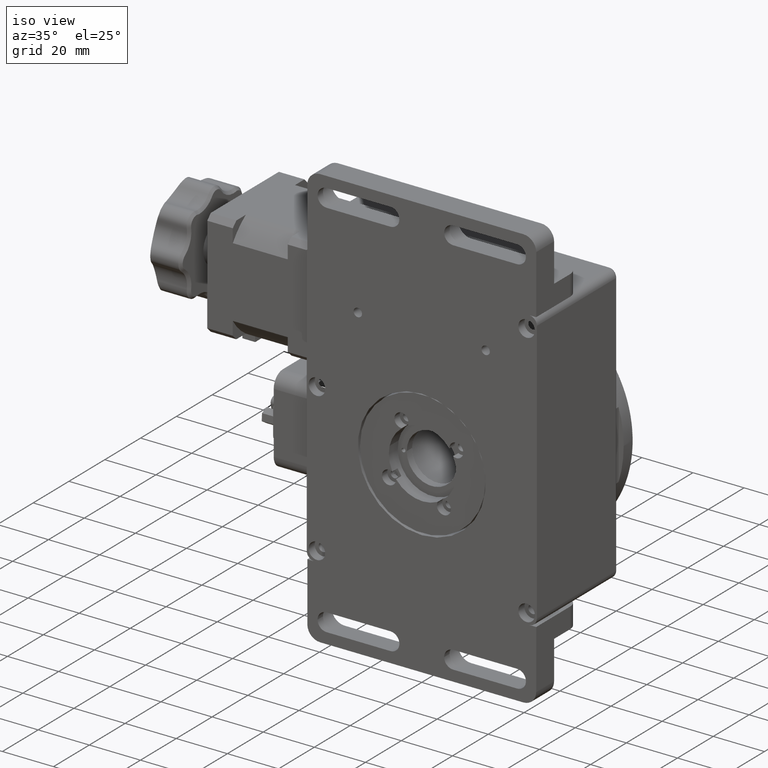
[diagram: clean part render]
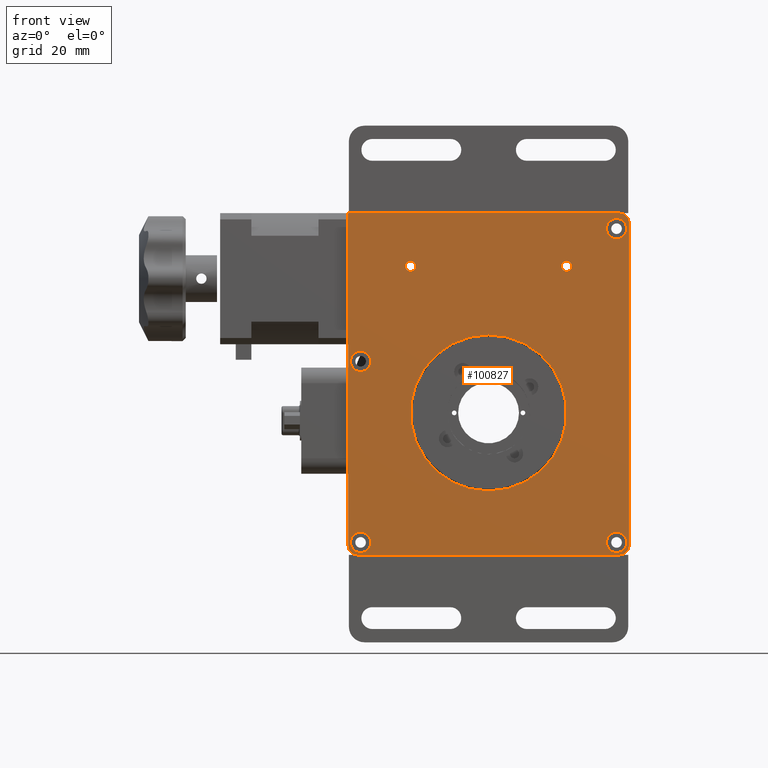
[diagram: tour spotlight — one face highlighted and labeled with its STEP entity id]
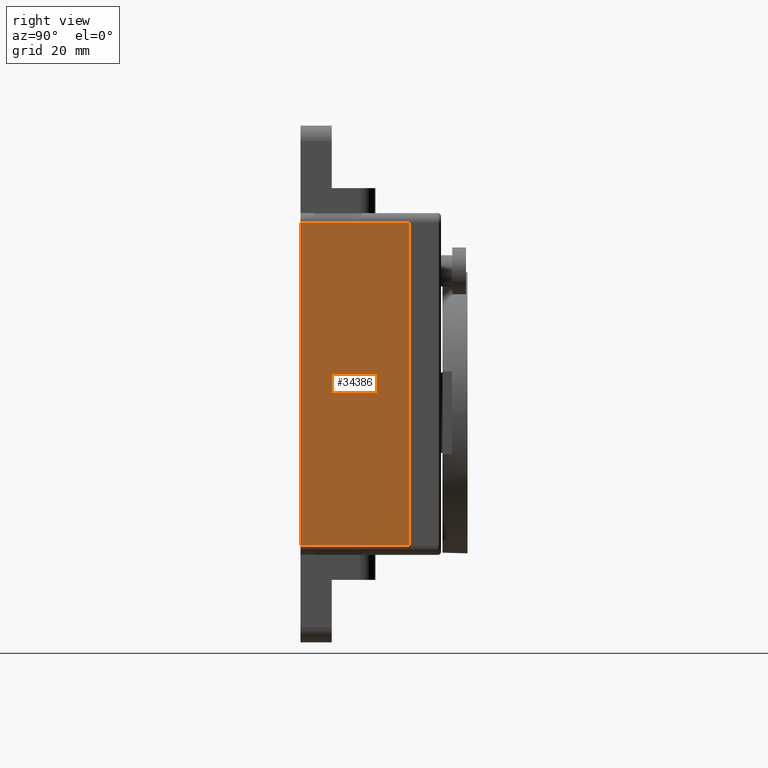
[diagram: tour spotlight — one face highlighted and labeled with its STEP entity id]
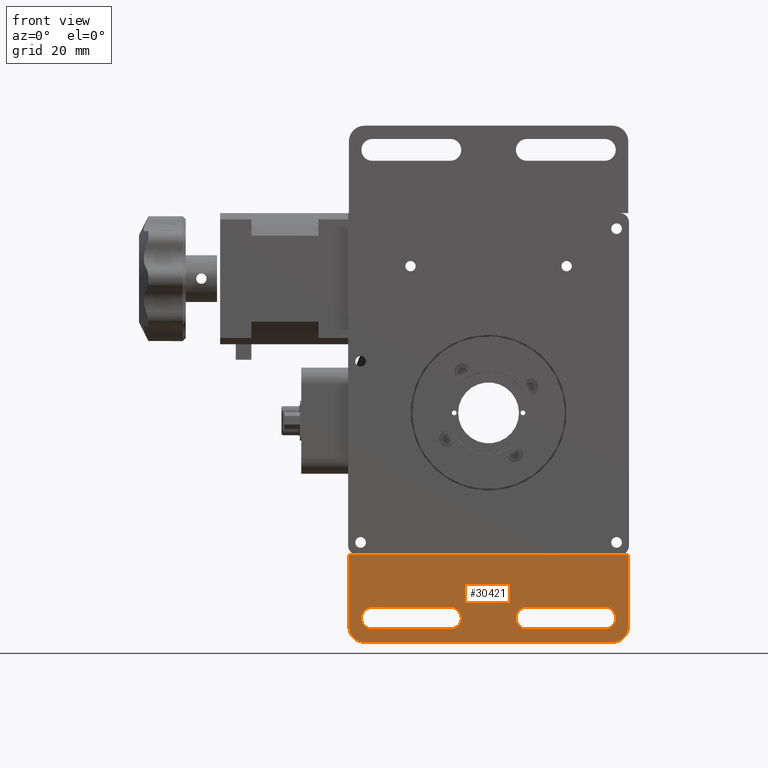
[diagram: tour spotlight — one face highlighted and labeled with its STEP entity id]
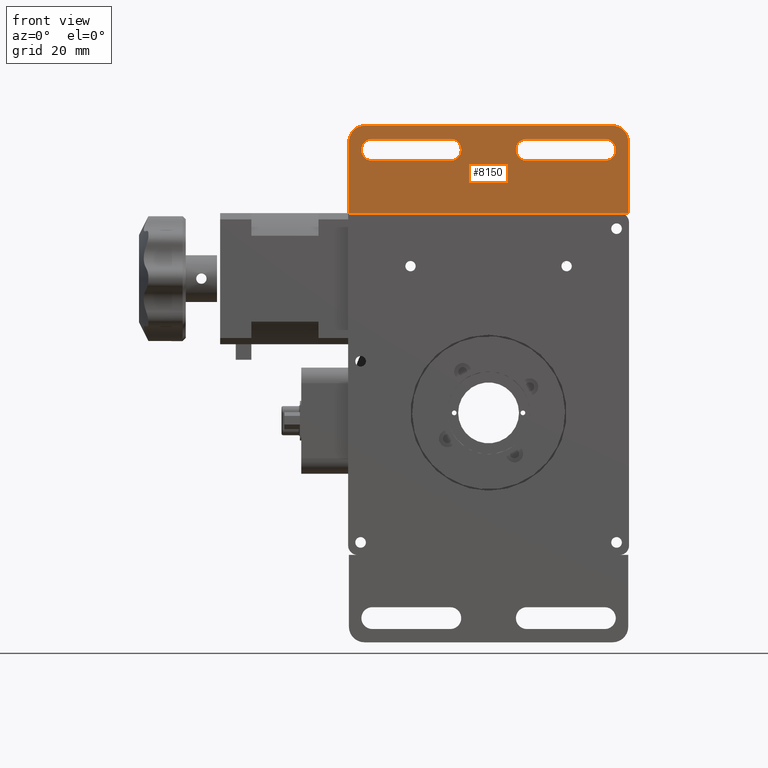
[diagram: tour spotlight — one face highlighted and labeled with its STEP entity id]
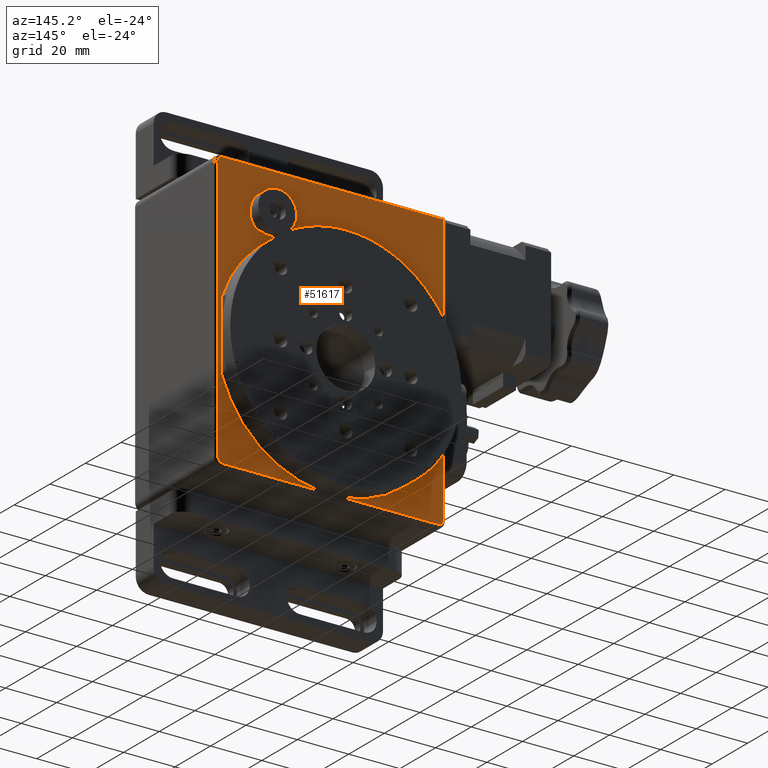
[diagram: tour spotlight — one face highlighted and labeled with its STEP entity id]
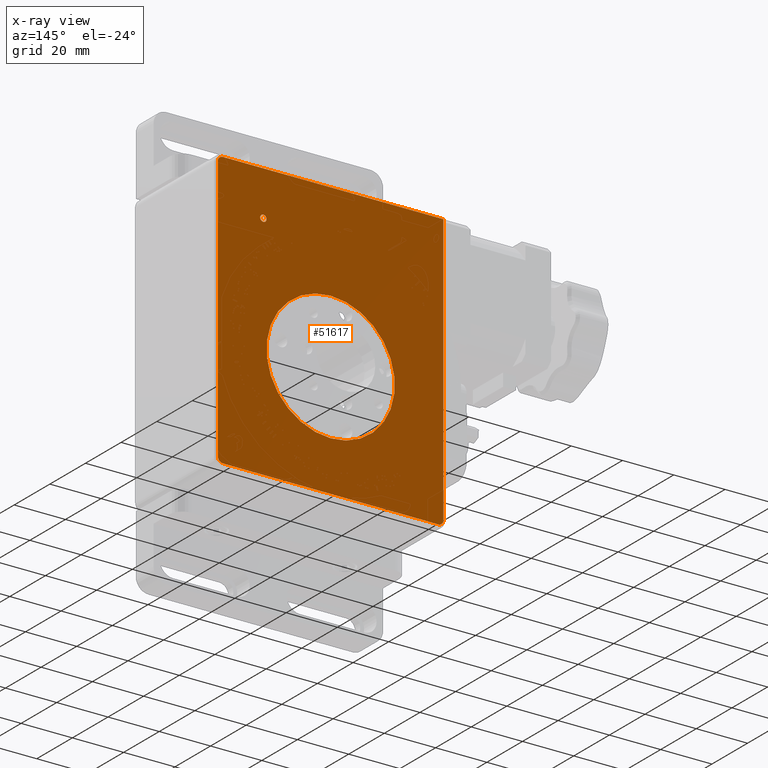
[diagram: x-ray of the same camera — body ghosted, this tour face saturated]
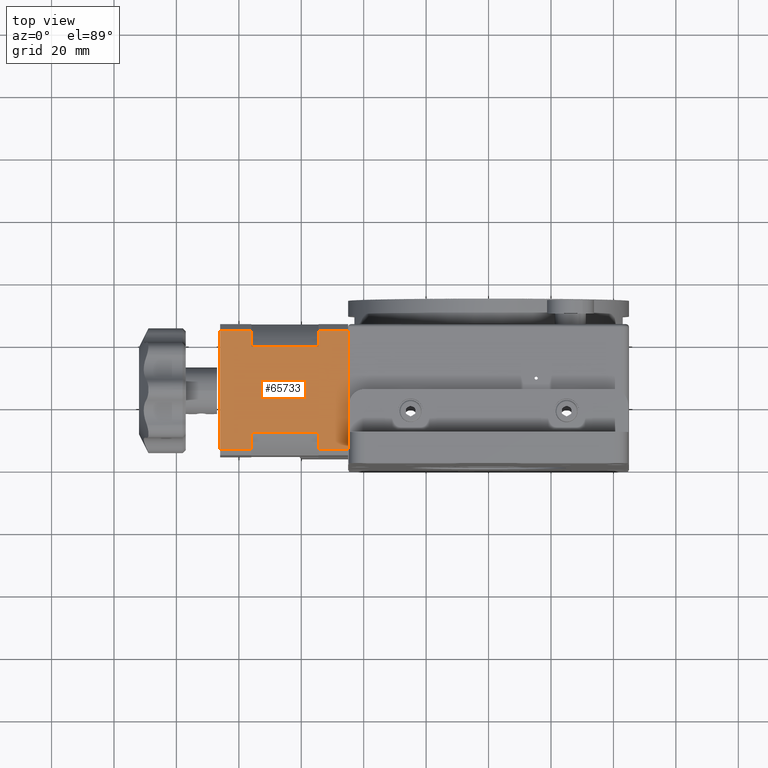
[diagram: tour spotlight — one face highlighted and labeled with its STEP entity id]
A machine part: a face-by-face anatomy tour. The part has 1119 B-rep faces; the first image is the clean iso view, then the 6 largest visible faces are spotlighted one at a time (largest first), each with its STEP entity span.

Face 1 — front view, entity #100827. In plain terms, the highlighted planar face has unit normal (0, -1, -0).
Definition (entity closure, byte-faithful):
#348 = VERTEX_POINT ( 'NONE', #94051 ) ;
#1037 = CARTESIAN_POINT ( 'NONE',  ( -42.00000000000000000, 2.433925457012779500E-015, -45.49999999999997900 ) ) ;
#1328 = CARTESIAN_POINT ( 'NONE',  ( 42.00000000000000000, -5.015193989266295700E-015, 60.99999999999999300 ) ) ;
#1618 = CARTESIAN_POINT ( 'NONE',  ( -44.99999999999999300, -1.616886962860230800E-014, 64.00000000000000000 ) ) ;
#2020 = VERTEX_POINT ( 'NONE', #40392 ) ;
#3432 = CARTESIAN_POINT ( 'NONE',  ( 41.00000000000000700, -4.804587717260983300E-015, 59.00000000000000000 ) ) ;
#3680 = CARTESIAN_POINT ( 'NONE',  ( -44.99999999999999300, -1.616886962860230800E-014, 64.00000000000000000 ) ) ;
#4402 = DIRECTION ( 'NONE',  ( 0.0000000000000000000, -1.665334536937751300E-016, 1.000000000000000000 ) ) ;
#4423 = CARTESIAN_POINT ( 'NONE',  ( 41.00000000000000700, -5.345821441765751800E-015, 62.24999999999999300 ) ) ;
#4454 = DIRECTION ( 'NONE',  ( 0.0000000000000000000, -1.665334536937752600E-016, 1.000000000000000000 ) ) ;
#4638 = DIRECTION ( 'NONE',  ( 1.224606353822369400E-016, -1.665334536937751100E-016, 1.000000000000000000 ) ) ;
#4721 = EDGE_LOOP ( 'NONE', ( #107351, #26500 ) ) ;
#5052 = DIRECTION ( 'NONE',  ( 0.0000000000000000000, -1.665334536937751300E-016, 1.000000000000000000 ) ) ;
#5328 = LINE ( 'NONE', #64839, #47738 ) ;
#5388 = DIRECTION ( 'NONE',  ( -1.224606353822377300E-016, 1.000000000000000000, -1.553069907153867000E-030 ) ) ;
#5412 = CARTESIAN_POINT ( 'NONE',  ( -6.429284470879902000E-015, -4.005934284325450600E-029, -25.00000000000000000 ) ) ;
#5484 = CARTESIAN_POINT ( 'NONE',  ( 44.99999999999999300, 1.258840037418614000E-014, -42.50000000000000000 ) ) ;
#5630 = EDGE_CURVE ( 'NONE', #8448, #103739, #7958, .T. ) ;
#6810 = CARTESIAN_POINT ( 'NONE',  ( 42.00000000000000000, -5.514794350347624000E-015, 64.00000000000001400 ) ) ;
#7958 = CIRCLE ( 'NONE', #10114, 1.649999999999998600 ) ;
#8448 = VERTEX_POINT ( 'NONE', #86218 ) ;
#8775 = AXIS2_PLACEMENT_3D ( 'NONE', #56207, #5388, #64705 ) ;
#9191 = ORIENTED_EDGE ( 'NONE', *, *, #108041, .T. ) ;
#9641 = FACE_OUTER_BOUND ( 'NONE', #108171, .T. ) ;
#9859 = DIRECTION ( 'NONE',  ( 0.0000000000000000000, -1.665334536937754000E-016, 1.000000000000000000 ) ) ;
#10114 = AXIS2_PLACEMENT_3D ( 'NONE', #67295, #16518, #75774 ) ;
#10334 = VERTEX_POINT ( 'NONE', #1037 ) ;
#10430 = CARTESIAN_POINT ( 'NONE',  ( -41.00000000000000000, -7.768688036619037600E-015, 16.50000000000000400 ) ) ;
#10957 = VERTEX_POINT ( 'NONE', #4423 ) ;
#11056 = AXIS2_PLACEMENT_3D ( 'NONE', #105925, #55181, #4402 ) ;
#11334 = ORIENTED_EDGE ( 'NONE', *, *, #33571, .F. ) ;
#11996 = DIRECTION ( 'NONE',  ( 0.0000000000000000000, -1.665334536937750100E-016, 1.000000000000000000 ) ) ;
#12257 = DIRECTION ( 'NONE',  ( 1.224606353822369400E-016, -1.665334536937751100E-016, 1.000000000000000000 ) ) ;
#12611 = EDGE_CURVE ( 'NONE', #41658, #104954, #15286, .T. ) ;
#13020 = AXIS2_PLACEMENT_3D ( 'NONE', #34905, #94182, #43425 ) ;
#14821 = AXIS2_PLACEMENT_3D ( 'NONE', #106590, #55856, #5052 ) ;
#15286 = CIRCLE ( 'NONE', #46114, 1.649999999999998600 ) ;
#16355 = CARTESIAN_POINT ( 'NONE',  ( -41.00000000000000700, 1.349018553115149600E-015, -38.24999999999999300 ) ) ;
#16518 = DIRECTION ( 'NONE',  ( -1.224606353822377300E-016, 1.000000000000000000, -1.553069907153867000E-030 ) ) ;
#17421 = CIRCLE ( 'NONE', #35025, 3.000000000000009800 ) ;
#17570 = DIRECTION ( 'NONE',  ( 1.000000000000000000, 1.224606353822377000E-016, 1.965689693951053500E-016 ) ) ;
#18943 = DIRECTION ( 'NONE',  ( 0.0000000000000000000, -1.665334536937752600E-016, 1.000000000000000000 ) ) ;
#19143 = AXIS2_PLACEMENT_3D ( 'NONE', #3432, #62723, #11996 ) ;
#19579 = CARTESIAN_POINT ( 'NONE',  ( -42.00000000000000000, 2.433925457012781100E-015, -45.49999999999998600 ) ) ;
#20263 = EDGE_CURVE ( 'NONE', #104954, #41658, #56984, .T. ) ;
#20510 = AXIS2_PLACEMENT_3D ( 'NONE', #46188, #105489, #54737 ) ;
#20573 = LINE ( 'NONE', #19579, #108065 ) ;
#20930 = CIRCLE ( 'NONE', #90206, 2.999999999999995600 ) ;
#21733 = ORIENTED_EDGE ( 'NONE', *, *, #82434, .T. ) ;
#22994 = ORIENTED_EDGE ( 'NONE', *, *, #83391, .F. ) ;
#23295 = ORIENTED_EDGE ( 'NONE', *, *, #103000, .F. ) ;
#24243 = CARTESIAN_POINT ( 'NONE',  ( 25.00000000000000700, -4.490776240456759000E-015, 45.35000000000000900 ) ) ;
#25437 = EDGE_CURVE ( 'NONE', #109711, #348, #62231, .T. ) ;
#26500 = ORIENTED_EDGE ( 'NONE', *, *, #40002, .F. ) ;
#26580 = DIRECTION ( 'NONE',  ( 1.224606353822377300E-016, -1.000000000000000000, 1.553069907153867000E-030 ) ) ;
#27511 = CARTESIAN_POINT ( 'NONE',  ( -0.0000000000000000000, 0.0000000000000000000, 0.0000000000000000000 ) ) ;
#27948 = EDGE_CURVE ( 'NONE', #348, #109711, #90557, .T. ) ;
#29158 = CIRCLE ( 'NONE', #103088, 25.00000000000000000 ) ;
#29479 = PLANE ( 'NONE',  #84830 ) ;
#29949 = ORIENTED_EDGE ( 'NONE', *, *, #12611, .T. ) ;
#31775 = CARTESIAN_POINT ( 'NONE',  ( 25.00000000000000700, -4.765556439051487000E-015, 47.00000000000000700 ) ) ;
#32167 = FACE_BOUND ( 'NONE', #68353, .T. ) ;
#32616 = EDGE_LOOP ( 'NONE', ( #79720, #11334 ) ) ;
#33455 = LINE ( 'NONE', #68324, #98409 ) ;
#33571 = EDGE_CURVE ( 'NONE', #96827, #10957, #43566, .T. ) ;
#33732 = ORIENTED_EDGE ( 'NONE', *, *, #92661, .F. ) ;
#34731 = CIRCLE ( 'NONE', #38725, 25.00000000000000000 ) ;
#34905 = CARTESIAN_POINT ( 'NONE',  ( 40.99999999999999300, 1.193202437896341600E-014, -41.50000000000000000 ) ) ;
#35025 = AXIS2_PLACEMENT_3D ( 'NONE', #98343, #47566, #106880 ) ;
#35059 = AXIS2_PLACEMENT_3D ( 'NONE', #41217, #100520, #49758 ) ;
#35555 = VERTEX_POINT ( 'NONE', #16355 ) ;
#35960 = DIRECTION ( 'NONE',  ( -1.224606353822369400E-016, 1.665334536937751300E-016, -1.000000000000000000 ) ) ;
#35993 = VECTOR ( 'NONE', #12257, 1000.000000000000000 ) ;
#37888 = CARTESIAN_POINT ( 'NONE',  ( 41.00000000000000700, -4.804587717260988800E-015, 55.75000000000000000 ) ) ;
#38335 = CARTESIAN_POINT ( 'NONE',  ( 41.99999999999998600, 1.222101846803942700E-014, -42.50000000000000000 ) ) ;
#38471 = DIRECTION ( 'NONE',  ( -1.224606353822377300E-016, 1.000000000000000000, -1.553069907153867000E-030 ) ) ;
#38725 = AXIS2_PLACEMENT_3D ( 'NONE', #89275, #38471, #97793 ) ;
#40002 = EDGE_CURVE ( 'NONE', #82214, #35555, #71964, .T. ) ;
#40122 = CARTESIAN_POINT ( 'NONE',  ( -41.00000000000000700, 1.890252277619913100E-015, -44.74999999999998600 ) ) ;
#40286 = DIRECTION ( 'NONE',  ( 0.0000000000000000000, 1.665334536937748900E-016, -1.000000000000000000 ) ) ;
#40392 = CARTESIAN_POINT ( 'NONE',  ( 45.00000000000000700, -4.647812083119582500E-015, 60.99999999999999300 ) ) ;
#41217 = CARTESIAN_POINT ( 'NONE',  ( -41.00000000000000000, -7.768688036619037600E-015, 16.50000000000000400 ) ) ;
#41658 = VERTEX_POINT ( 'NONE', #102940 ) ;
#43425 = DIRECTION ( 'NONE',  ( 0.0000000000000000000, -1.665334536937752600E-016, 1.000000000000000000 ) ) ;
#43564 = VERTEX_POINT ( 'NONE', #5484 ) ;
#43566 = CIRCLE ( 'NONE', #48373, 3.249999999999996000 ) ;
#45622 = EDGE_CURVE ( 'NONE', #75763, #101988, #101020, .T. ) ;
#46114 = AXIS2_PLACEMENT_3D ( 'NONE', #31775, #91077, #40286 ) ;
#46188 = CARTESIAN_POINT ( 'NONE',  ( 25.00000000000000700, -4.765556439051487000E-015, 47.00000000000000700 ) ) ;
#46868 = DIRECTION ( 'NONE',  ( 0.0000000000000000000, 1.665334536937754000E-016, -1.000000000000000000 ) ) ;
#47566 = DIRECTION ( 'NONE',  ( -1.224606353822377300E-016, 1.000000000000000000, -1.553069907153867000E-030 ) ) ;
#47738 = VECTOR ( 'NONE', #73315, 1000.000000000000000 ) ;
#48182 = VERTEX_POINT ( 'NONE', #5412 ) ;
#48373 = AXIS2_PLACEMENT_3D ( 'NONE', #77300, #26580, #85821 ) ;
#49758 = DIRECTION ( 'NONE',  ( 0.0000000000000000000, -1.665334536937752600E-016, 1.000000000000000000 ) ) ;
#54726 = FACE_BOUND ( 'NONE', #56649, .T. ) ;
#54737 = DIRECTION ( 'NONE',  ( 0.0000000000000000000, 1.665334536937748900E-016, -1.000000000000000000 ) ) ;
#54814 = ORIENTED_EDGE ( 'NONE', *, *, #20263, .T. ) ;
#55181 = DIRECTION ( 'NONE',  ( 1.224606353822377300E-016, -1.000000000000000000, 1.553069907153867000E-030 ) ) ;
#55234 = DIRECTION ( 'NONE',  ( 1.224606353822377300E-016, -1.000000000000000000, 1.553069907153867000E-030 ) ) ;
#55428 = DIRECTION ( 'NONE',  ( 1.224606353822377000E-016, -1.000000000000000000, -1.665334536937751300E-016 ) ) ;
#55856 = DIRECTION ( 'NONE',  ( 1.224606353822377300E-016, -1.000000000000000000, 1.553069907153867000E-030 ) ) ;
#56207 = CARTESIAN_POINT ( 'NONE',  ( -24.99999999999999300, -1.088858820816337600E-014, 47.00000000000000700 ) ) ;
#56649 = EDGE_LOOP ( 'NONE', ( #61888, #9191 ) ) ;
#56984 = CIRCLE ( 'NONE', #20510, 1.649999999999998600 ) ;
#58692 = EDGE_LOOP ( 'NONE', ( #85726, #21733 ) ) ;
#58940 = CIRCLE ( 'NONE', #11056, 3.249999999999996000 ) ;
#60612 = DIRECTION ( 'NONE',  ( -1.224606353822377300E-016, 1.000000000000000000, -1.553069907153867000E-030 ) ) ;
#60634 = EDGE_CURVE ( 'NONE', #2020, #43564, #5328, .T. ) ;
#61888 = ORIENTED_EDGE ( 'NONE', *, *, #5630, .T. ) ;
#62231 = CIRCLE ( 'NONE', #35059, 3.249999999999996000 ) ;
#62723 = DIRECTION ( 'NONE',  ( 1.224606353822377300E-016, -1.000000000000000000, 1.553069907153867000E-030 ) ) ;
#63313 = ORIENTED_EDGE ( 'NONE', *, *, #85541, .F. ) ;
#64365 = CARTESIAN_POINT ( 'NONE',  ( 40.99999999999999300, 1.139079065445864700E-014, -38.25000000000000700 ) ) ;
#64705 = DIRECTION ( 'NONE',  ( 0.0000000000000000000, 1.665334536937748900E-016, -1.000000000000000000 ) ) ;
#64839 = CARTESIAN_POINT ( 'NONE',  ( 45.00000000000000700, -4.647812083119582500E-015, 60.99999999999999300 ) ) ;
#67242 = AXIS2_PLACEMENT_3D ( 'NONE', #10430, #69696, #18943 ) ;
#67295 = CARTESIAN_POINT ( 'NONE',  ( -24.99999999999999300, -1.088858820816337600E-014, 47.00000000000000700 ) ) ;
#67364 = EDGE_CURVE ( 'NONE', #35555, #82214, #58940, .T. ) ;
#67369 = CARTESIAN_POINT ( 'NONE',  ( 41.99999999999998600, 1.272061882912075200E-014, -45.50000000000000000 ) ) ;
#68324 = CARTESIAN_POINT ( 'NONE',  ( -44.99999999999999300, -1.616886962860230800E-014, 64.00000000000000000 ) ) ;
#68353 = EDGE_LOOP ( 'NONE', ( #54814, #29949 ) ) ;
#68548 = ORIENTED_EDGE ( 'NONE', *, *, #25437, .F. ) ;
#68770 = CIRCLE ( 'NONE', #91371, 3.000000000000009800 ) ;
#68908 = ORIENTED_EDGE ( 'NONE', *, *, #101060, .F. ) ;
#69696 = DIRECTION ( 'NONE',  ( 1.224606353822377300E-016, -1.000000000000000000, 1.553069907153867000E-030 ) ) ;
#69703 = CARTESIAN_POINT ( 'NONE',  ( -24.99999999999999300, -1.088858820816337200E-014, 48.65000000000000600 ) ) ;
#71964 = CIRCLE ( 'NONE', #14821, 3.249999999999996000 ) ;
#72180 = EDGE_CURVE ( 'NONE', #10957, #96827, #98352, .T. ) ;
#73315 = DIRECTION ( 'NONE',  ( -1.224606353822369400E-016, 1.665334536937751100E-016, -1.000000000000000000 ) ) ;
#75096 = ORIENTED_EDGE ( 'NONE', *, *, #106601, .F. ) ;
#75373 = EDGE_LOOP ( 'NONE', ( #90983, #68548 ) ) ;
#75763 = VERTEX_POINT ( 'NONE', #105923 ) ;
#75774 = DIRECTION ( 'NONE',  ( 0.0000000000000000000, 1.665334536937748900E-016, -1.000000000000000000 ) ) ;
#77010 = CARTESIAN_POINT ( 'NONE',  ( 40.99999999999999300, 1.193202437896341100E-014, -44.75000000000000000 ) ) ;
#77250 = FACE_BOUND ( 'NONE', #75373, .T. ) ;
#77300 = CARTESIAN_POINT ( 'NONE',  ( 41.00000000000000700, -4.804587717260983300E-015, 59.00000000000000000 ) ) ;
#79599 = ORIENTED_EDGE ( 'NONE', *, *, #60634, .F. ) ;
#79720 = ORIENTED_EDGE ( 'NONE', *, *, #72180, .F. ) ;
#79891 = FACE_BOUND ( 'NONE', #4721, .T. ) ;
#82028 = CIRCLE ( 'NONE', #13020, 3.249999999999996000 ) ;
#82214 = VERTEX_POINT ( 'NONE', #40122 ) ;
#82434 = EDGE_CURVE ( 'NONE', #48182, #87754, #29158, .T. ) ;
#82942 = VERTEX_POINT ( 'NONE', #77010 ) ;
#83391 = EDGE_CURVE ( 'NONE', #82942, #88539, #82028, .T. ) ;
#84195 = EDGE_CURVE ( 'NONE', #10334, #75763, #17421, .T. ) ;
#84312 = EDGE_LOOP ( 'NONE', ( #63313, #22994 ) ) ;
#84613 = CARTESIAN_POINT ( 'NONE',  ( -41.00000000000000000, -7.768688036619042300E-015, 13.25000000000000900 ) ) ;
#84692 = ORIENTED_EDGE ( 'NONE', *, *, #45622, .F. ) ;
#84830 = AXIS2_PLACEMENT_3D ( 'NONE', #106182, #55428, #4638 ) ;
#85541 = EDGE_CURVE ( 'NONE', #88539, #82942, #92574, .T. ) ;
#85726 = ORIENTED_EDGE ( 'NONE', *, *, #101781, .T. ) ;
#85821 = DIRECTION ( 'NONE',  ( 0.0000000000000000000, -1.665334536937750100E-016, 1.000000000000000000 ) ) ;
#86218 = CARTESIAN_POINT ( 'NONE',  ( -24.99999999999999300, -1.061380800956864700E-014, 45.35000000000000900 ) ) ;
#86265 = DIRECTION ( 'NONE',  ( -1.000000000000000000, -1.224606353822377500E-016, 1.224606353822385100E-016 ) ) ;
#86532 = VERTEX_POINT ( 'NONE', #6810 ) ;
#86767 = DIRECTION ( 'NONE',  ( -1.224606353822377300E-016, 1.000000000000000000, -1.553069907153867000E-030 ) ) ;
#87754 = VERTEX_POINT ( 'NONE', #103106 ) ;
#88539 = VERTEX_POINT ( 'NONE', #64365 ) ;
#89275 = CARTESIAN_POINT ( 'NONE',  ( -0.0000000000000000000, 0.0000000000000000000, 0.0000000000000000000 ) ) ;
#90206 = AXIS2_PLACEMENT_3D ( 'NONE', #38335, #97654, #46868 ) ;
#90557 = CIRCLE ( 'NONE', #67242, 3.249999999999996000 ) ;
#90983 = ORIENTED_EDGE ( 'NONE', *, *, #27948, .F. ) ;
#91077 = DIRECTION ( 'NONE',  ( -1.224606353822377300E-016, 1.000000000000000000, -1.553069907153867000E-030 ) ) ;
#91371 = AXIS2_PLACEMENT_3D ( 'NONE', #1328, #60612, #9859 ) ;
#92574 = CIRCLE ( 'NONE', #100463, 3.249999999999996000 ) ;
#92661 = EDGE_CURVE ( 'NONE', #86532, #2020, #68770, .T. ) ;
#94051 = CARTESIAN_POINT ( 'NONE',  ( -41.00000000000000000, -8.309921761123806100E-015, 19.75000000000000000 ) ) ;
#94182 = DIRECTION ( 'NONE',  ( 1.224606353822377300E-016, -1.000000000000000000, 1.553069907153867000E-030 ) ) ;
#95127 = VERTEX_POINT ( 'NONE', #67369 ) ;
#96827 = VERTEX_POINT ( 'NONE', #37888 ) ;
#97137 = FACE_BOUND ( 'NONE', #58692, .T. ) ;
#97654 = DIRECTION ( 'NONE',  ( -1.224606353822377300E-016, 1.000000000000000000, -1.553069907153867000E-030 ) ) ;
#97793 = DIRECTION ( 'NONE',  ( -1.224606353822369400E-016, 1.665334536937751300E-016, -1.000000000000000000 ) ) ;
#98343 = CARTESIAN_POINT ( 'NONE',  ( -42.00000000000000000, 1.934325095931453900E-015, -42.49999999999997900 ) ) ;
#98352 = CIRCLE ( 'NONE', #19143, 3.249999999999996000 ) ;
#98409 = VECTOR ( 'NONE', #17570, 1000.000000000000000 ) ;
#99802 = FACE_BOUND ( 'NONE', #84312, .T. ) ;
#100463 = AXIS2_PLACEMENT_3D ( 'NONE', #105976, #55234, #4454 ) ;
#100520 = DIRECTION ( 'NONE',  ( 1.224606353822377300E-016, -1.000000000000000000, 1.553069907153867000E-030 ) ) ;
#100827 = ADVANCED_FACE ( 'NONE', ( #79891, #77250, #105110, #99802, #54726, #32167, #9641, #97137 ), #29479, .T. ) ;
#100954 = CIRCLE ( 'NONE', #8775, 1.649999999999998600 ) ;
#101020 = LINE ( 'NONE', #3680, #35993 ) ;
#101060 = EDGE_CURVE ( 'NONE', #101988, #86532, #33455, .T. ) ;
#101781 = EDGE_CURVE ( 'NONE', #87754, #48182, #34731, .T. ) ;
#101988 = VERTEX_POINT ( 'NONE', #1618 ) ;
#102940 = CARTESIAN_POINT ( 'NONE',  ( 25.00000000000000700, -4.765556439051484600E-015, 48.65000000000000600 ) ) ;
#103000 = EDGE_CURVE ( 'NONE', #95127, #10334, #20573, .T. ) ;
#103088 = AXIS2_PLACEMENT_3D ( 'NONE', #27511, #86767, #35960 ) ;
#103106 = CARTESIAN_POINT ( 'NONE',  ( 2.755364296100328700E-015, 3.851859888774471700E-029, 25.00000000000000000 ) ) ;
#103739 = VERTEX_POINT ( 'NONE', #69703 ) ;
#104615 = ORIENTED_EDGE ( 'NONE', *, *, #84195, .F. ) ;
#104954 = VERTEX_POINT ( 'NONE', #24243 ) ;
#105110 = FACE_BOUND ( 'NONE', #32616, .T. ) ;
#105489 = DIRECTION ( 'NONE',  ( -1.224606353822377300E-016, 1.000000000000000000, -1.553069907153867000E-030 ) ) ;
#105923 = CARTESIAN_POINT ( 'NONE',  ( -45.00000000000000700, 1.566943189784740800E-015, -42.49999999999997900 ) ) ;
#105925 = CARTESIAN_POINT ( 'NONE',  ( -41.00000000000000700, 1.890252277619918200E-015, -41.49999999999998600 ) ) ;
#105976 = CARTESIAN_POINT ( 'NONE',  ( 40.99999999999999300, 1.193202437896341600E-014, -41.50000000000000000 ) ) ;
#106182 = CARTESIAN_POINT ( 'NONE',  ( 42.00000000000000000, -5.015193989266295700E-015, 60.99999999999999300 ) ) ;
#106590 = CARTESIAN_POINT ( 'NONE',  ( -41.00000000000000700, 1.890252277619918200E-015, -41.49999999999998600 ) ) ;
#106601 = EDGE_CURVE ( 'NONE', #43564, #95127, #20930, .T. ) ;
#106880 = DIRECTION ( 'NONE',  ( 0.0000000000000000000, 1.665334536937748900E-016, -1.000000000000000000 ) ) ;
#107351 = ORIENTED_EDGE ( 'NONE', *, *, #67364, .F. ) ;
#108041 = EDGE_CURVE ( 'NONE', #103739, #8448, #100954, .T. ) ;
#108065 = VECTOR ( 'NONE', #86265, 1000.000000000000000 ) ;
#108171 = EDGE_LOOP ( 'NONE', ( #68908, #84692, #104615, #23295, #75096, #79599, #33732 ) ) ;
#109711 = VERTEX_POINT ( 'NONE', #84613 ) ;

Face 2 — right view, entity #34386. In plain terms, the highlighted planar face has unit normal (-1, -0, 0).
Definition (entity closure, byte-faithful):
#1353 = VERTEX_POINT ( 'NONE', #44304 ) ;
#2020 = VERTEX_POINT ( 'NONE', #40392 ) ;
#2819 = ORIENTED_EDGE ( 'NONE', *, *, #35017, .F. ) ;
#3380 = LINE ( 'NONE', #40521, #25959 ) ;
#4145 = ORIENTED_EDGE ( 'NONE', *, *, #32588, .F. ) ;
#5328 = LINE ( 'NONE', #64839, #47738 ) ;
#5484 = CARTESIAN_POINT ( 'NONE',  ( 44.99999999999999300, 1.258840037418614000E-014, -42.50000000000000000 ) ) ;
#8230 = CARTESIAN_POINT ( 'NONE',  ( 45.00000000000000000, 34.99999999999999300, 60.99999999999999300 ) ) ;
#13686 = AXIS2_PLACEMENT_3D ( 'NONE', #88517, #37697, #97021 ) ;
#25959 = VECTOR ( 'NONE', #107994, 1000.000000000000000 ) ;
#32588 = EDGE_CURVE ( 'NONE', #1353, #43564, #50353, .T. ) ;
#33414 = ORIENTED_EDGE ( 'NONE', *, *, #63116, .T. ) ;
#34386 = ADVANCED_FACE ( 'NONE', ( #38007 ), #54436, .F. ) ;
#35017 = EDGE_CURVE ( 'NONE', #61640, #1353, #3380, .T. ) ;
#37697 = DIRECTION ( 'NONE',  ( -1.000000000000000000, -1.224606353822377300E-016, 1.224606353822385100E-016 ) ) ;
#38007 = FACE_OUTER_BOUND ( 'NONE', #49412, .T. ) ;
#40392 = CARTESIAN_POINT ( 'NONE',  ( 45.00000000000000700, -4.647812083119582500E-015, 60.99999999999999300 ) ) ;
#40521 = CARTESIAN_POINT ( 'NONE',  ( 45.00000000000000000, 34.99999999999999300, 60.99999999999999300 ) ) ;
#41939 = LINE ( 'NONE', #109770, #104262 ) ;
#43564 = VERTEX_POINT ( 'NONE', #5484 ) ;
#44304 = CARTESIAN_POINT ( 'NONE',  ( 44.99999999999998600, 35.00000000000001400, -42.50000000000000000 ) ) ;
#47738 = VECTOR ( 'NONE', #73315, 1000.000000000000000 ) ;
#49412 = EDGE_LOOP ( 'NONE', ( #91214, #4145, #2819, #33414 ) ) ;
#50353 = LINE ( 'NONE', #53933, #72877 ) ;
#53933 = CARTESIAN_POINT ( 'NONE',  ( 44.99999999999998600, 35.00000000000001400, -42.50000000000000000 ) ) ;
#54436 = PLANE ( 'NONE',  #13686 ) ;
#60634 = EDGE_CURVE ( 'NONE', #2020, #43564, #5328, .T. ) ;
#61640 = VERTEX_POINT ( 'NONE', #8230 ) ;
#62434 = DIRECTION ( 'NONE',  ( 1.224606353822377300E-016, -1.000000000000000000, 1.553069907153867000E-030 ) ) ;
#63116 = EDGE_CURVE ( 'NONE', #61640, #2020, #41939, .T. ) ;
#64839 = CARTESIAN_POINT ( 'NONE',  ( 45.00000000000000700, -4.647812083119582500E-015, 60.99999999999999300 ) ) ;
#67534 = DIRECTION ( 'NONE',  ( 1.224606353822377300E-016, -1.000000000000000000, 1.553069907153867000E-030 ) ) ;
#72877 = VECTOR ( 'NONE', #62434, 1000.000000000000000 ) ;
#73315 = DIRECTION ( 'NONE',  ( -1.224606353822369400E-016, 1.665334536937751100E-016, -1.000000000000000000 ) ) ;
#88517 = CARTESIAN_POINT ( 'NONE',  ( 45.00000000000000000, 34.99999999999999300, 60.99999999999999300 ) ) ;
#91214 = ORIENTED_EDGE ( 'NONE', *, *, #60634, .T. ) ;
#97021 = DIRECTION ( 'NONE',  ( -1.224606353822377300E-016, 1.000000000000000000, -1.553069907153867000E-030 ) ) ;
#104262 = VECTOR ( 'NONE', #67534, 1000.000000000000000 ) ;
#107994 = DIRECTION ( 'NONE',  ( -1.224606353822369400E-016, 1.665334536937751100E-016, -1.000000000000000000 ) ) ;
#109770 = CARTESIAN_POINT ( 'NONE',  ( 45.00000000000000000, 34.99999999999999300, 60.99999999999999300 ) ) ;

Face 3 — front view, entity #30421. In plain terms, the highlighted planar face has unit normal (-0, 1, 0).
Definition (entity closure, byte-faithful):
#44 = PLANE ( 'NONE',  #56043 ) ;
#557 = VERTEX_POINT ( 'NONE', #62543 ) ;
#779 = DIRECTION ( 'NONE',  ( 1.143833291972205300E-017, -5.674445940230731700E-017, 1.000000000000000000 ) ) ;
#1307 = DIRECTION ( 'NONE',  ( -2.726770674169201900E-016, 1.000000000000000000, 1.134889188046145800E-016 ) ) ;
#3217 = CARTESIAN_POINT ( 'NONE',  ( 39.74999999999997900, 6.938893903907228400E-015, -73.49999999999997200 ) ) ;
#3226 = EDGE_LOOP ( 'NONE', ( #90407, #79174, #82306, #16052, #69157 ) ) ;
#4681 = VERTEX_POINT ( 'NONE', #95247 ) ;
#5090 = VECTOR ( 'NONE', #63856, 1000.000000000000000 ) ;
#5957 = VERTEX_POINT ( 'NONE', #3217 ) ;
#7838 = EDGE_CURVE ( 'NONE', #4681, #105128, #105247, .T. ) ;
#12221 = VECTOR ( 'NONE', #779, 1000.000000000000000 ) ;
#12850 = EDGE_CURVE ( 'NONE', #36273, #87668, #58945, .T. ) ;
#16052 = ORIENTED_EDGE ( 'NONE', *, *, #90349, .F. ) ;
#16585 = AXIS2_PLACEMENT_3D ( 'NONE', #38366, #97704, #46909 ) ;
#17400 = AXIS2_PLACEMENT_3D ( 'NONE', #90863, #40061, #99406 ) ;
#17414 = AXIS2_PLACEMENT_3D ( 'NONE', #68904, #18159, #77396 ) ;
#17466 = ORIENTED_EDGE ( 'NONE', *, *, #89104, .T. ) ;
#18159 = DIRECTION ( 'NONE',  ( 2.726770674169201900E-016, -1.000000000000000000, -1.134889188046145800E-016 ) ) ;
#18979 = CARTESIAN_POINT ( 'NONE',  ( 8.750000000000010700, 7.803537400175867300E-016, -65.74999999999997200 ) ) ;
#19205 = VECTOR ( 'NONE', #67256, 1000.000000000000000 ) ;
#20898 = CIRCLE ( 'NONE', #17400, 3.499999999999999600 ) ;
#20919 = VERTEX_POINT ( 'NONE', #22005 ) ;
#21632 = CARTESIAN_POINT ( 'NONE',  ( -44.74999999999998600, -5.204170427930421300E-015, -69.24999999999997200 ) ) ;
#22005 = CARTESIAN_POINT ( 'NONE',  ( -44.74999999999998600, -5.204170427930421300E-015, -68.49999999999997200 ) ) ;
#23413 = EDGE_CURVE ( 'NONE', #105128, #24147, #62736, .T. ) ;
#24147 = VERTEX_POINT ( 'NONE', #35974 ) ;
#24551 = DIRECTION ( 'NONE',  ( 2.726770674169201900E-016, -1.000000000000000000, -1.134889188046145800E-016 ) ) ;
#25381 = EDGE_CURVE ( 'NONE', #83788, #87668, #75522, .T. ) ;
#26271 = EDGE_CURVE ( 'NONE', #108910, #95648, #20898, .T. ) ;
#27668 = LINE ( 'NONE', #21632, #5090 ) ;
#28893 = FACE_BOUND ( 'NONE', #3226, .T. ) ;
#29718 = EDGE_LOOP ( 'NONE', ( #17466, #81075, #46682, #107694, #38068, #72579 ) ) ;
#30420 = VERTEX_POINT ( 'NONE', #67529 ) ;
#30421 = ADVANCED_FACE ( 'NONE', ( #96502, #51418, #28893 ), #44, .F. ) ;
#31312 = AXIS2_PLACEMENT_3D ( 'NONE', #86002, #35219, #94510 ) ;
#33468 = CARTESIAN_POINT ( 'NONE',  ( -44.74999999999998600, -5.204170427930421300E-015, -73.49999999999998600 ) ) ;
#33817 = CARTESIAN_POINT ( 'NONE',  ( 44.75000000000001400, 5.204170427930421300E-015, -45.49999999999997200 ) ) ;
#34159 = CARTESIAN_POINT ( 'NONE',  ( -44.74999999999998600, -5.204170427930421300E-015, -73.49999999999998600 ) ) ;
#35219 = DIRECTION ( 'NONE',  ( 2.726770674169201900E-016, -1.000000000000000000, -1.134889188046145800E-016 ) ) ;
#35297 = VECTOR ( 'NONE', #109435, 1000.000000000000000 ) ;
#35974 = CARTESIAN_POINT ( 'NONE',  ( -37.24999999999997900, -5.204170427930421300E-015, -62.24999999999998600 ) ) ;
#36273 = VERTEX_POINT ( 'NONE', #64686 ) ;
#36867 = CIRCLE ( 'NONE', #31312, 4.999999999999997300 ) ;
#36881 = CIRCLE ( 'NONE', #54232, 3.500000000000003100 ) ;
#37961 = LINE ( 'NONE', #33468, #35297 ) ;
#38068 = ORIENTED_EDGE ( 'NONE', *, *, #69126, .F. ) ;
#38366 = CARTESIAN_POINT ( 'NONE',  ( 12.25000000000001100, 1.734723475976807100E-015, -65.74999999999997200 ) ) ;
#39263 = LINE ( 'NONE', #60143, #104272 ) ;
#39358 = CARTESIAN_POINT ( 'NONE',  ( 39.75000000000000700, 6.938893903907228400E-015, -68.49999999999997200 ) ) ;
#40061 = DIRECTION ( 'NONE',  ( -2.726770674169201900E-016, 1.000000000000000000, 1.134889188046145800E-016 ) ) ;
#40174 = VECTOR ( 'NONE', #85886, 1000.000000000000000 ) ;
#40381 = AXIS2_PLACEMENT_3D ( 'NONE', #75272, #24551, #83783 ) ;
#42607 = DIRECTION ( 'NONE',  ( 2.726770674169201900E-016, -1.000000000000000000, -1.134889188046145800E-016 ) ) ;
#42660 = DIRECTION ( 'NONE',  ( -1.000000000000000000, -1.281799123605069900E-016, -9.958396954279358200E-017 ) ) ;
#42933 = EDGE_CURVE ( 'NONE', #30420, #108456, #39263, .T. ) ;
#44394 = LINE ( 'NONE', #101351, #19205 ) ;
#44737 = EDGE_CURVE ( 'NONE', #95648, #30420, #72067, .T. ) ;
#46682 = ORIENTED_EDGE ( 'NONE', *, *, #12850, .T. ) ;
#46909 = DIRECTION ( 'NONE',  ( -1.000000000000000000, -1.281799123605069700E-016, 0.0000000000000000000 ) ) ;
#47203 = EDGE_CURVE ( 'NONE', #5957, #36273, #47287, .T. ) ;
#47287 = CIRCLE ( 'NONE', #104057, 4.999999999999997300 ) ;
#47411 = ORIENTED_EDGE ( 'NONE', *, *, #65039, .T. ) ;
#47913 = DIRECTION ( 'NONE',  ( -1.000000000000000000, -1.281799123605069900E-016, 0.0000000000000000000 ) ) ;
#49038 = CARTESIAN_POINT ( 'NONE',  ( -44.74999999999998600, -6.938893903907228400E-015, -45.49999999999997900 ) ) ;
#50322 = VECTOR ( 'NONE', #107955, 1000.000000000000000 ) ;
#51418 = FACE_BOUND ( 'NONE', #55076, .T. ) ;
#52091 = CARTESIAN_POINT ( 'NONE',  ( 37.25000000000001400, 3.469446951953614200E-015, -65.74999999999997200 ) ) ;
#52837 = DIRECTION ( 'NONE',  ( 1.143833291972205300E-017, -5.674445940230731700E-017, 1.000000000000000000 ) ) ;
#53898 = VERTEX_POINT ( 'NONE', #105586 ) ;
#54232 = AXIS2_PLACEMENT_3D ( 'NONE', #93377, #42607, #101934 ) ;
#55076 = EDGE_LOOP ( 'NONE', ( #93331, #47411, #57058, #59090, #59195 ) ) ;
#56043 = AXIS2_PLACEMENT_3D ( 'NONE', #34159, #93427, #42660 ) ;
#57058 = ORIENTED_EDGE ( 'NONE', *, *, #57564, .T. ) ;
#57564 = EDGE_CURVE ( 'NONE', #53898, #108910, #27668, .T. ) ;
#58945 = LINE ( 'NONE', #95075, #101403 ) ;
#59090 = ORIENTED_EDGE ( 'NONE', *, *, #26271, .T. ) ;
#59195 = ORIENTED_EDGE ( 'NONE', *, *, #44737, .T. ) ;
#60143 = CARTESIAN_POINT ( 'NONE',  ( -44.74999999999998600, -5.204170427930421300E-015, -62.24999999999998600 ) ) ;
#60598 = DIRECTION ( 'NONE',  ( -1.000000000000000000, -1.281799123605070900E-016, 0.0000000000000000000 ) ) ;
#62543 = CARTESIAN_POINT ( 'NONE',  ( -39.74999999999997900, -3.469446951953614200E-015, -73.49999999999998600 ) ) ;
#62736 = LINE ( 'NONE', #94022, #40174 ) ;
#63856 = DIRECTION ( 'NONE',  ( -1.000000000000000000, -1.281799123605069900E-016, -9.958396954279358200E-017 ) ) ;
#64686 = CARTESIAN_POINT ( 'NONE',  ( 44.75000000000001400, 6.938893903907228400E-015, -68.49999999999995700 ) ) ;
#65039 = EDGE_CURVE ( 'NONE', #108456, #53898, #89045, .T. ) ;
#65756 = EDGE_CURVE ( 'NONE', #24147, #98774, #36881, .T. ) ;
#67256 = DIRECTION ( 'NONE',  ( 1.000000000000000000, 1.281799123605069900E-016, 9.958396954279358200E-017 ) ) ;
#67529 = CARTESIAN_POINT ( 'NONE',  ( 12.25000000000001100, 1.734723475976807100E-015, -62.24999999999997900 ) ) ;
#68904 = CARTESIAN_POINT ( 'NONE',  ( -12.24999999999998200, -1.734723475976807100E-015, -65.74999999999997200 ) ) ;
#69126 = EDGE_CURVE ( 'NONE', #20919, #83788, #77139, .T. ) ;
#69157 = ORIENTED_EDGE ( 'NONE', *, *, #71475, .F. ) ;
#71475 = EDGE_CURVE ( 'NONE', #98774, #88114, #107831, .T. ) ;
#72067 = CIRCLE ( 'NONE', #16585, 3.499999999999999600 ) ;
#72579 = ORIENTED_EDGE ( 'NONE', *, *, #97183, .T. ) ;
#75272 = CARTESIAN_POINT ( 'NONE',  ( -37.24999999999997900, -5.204170427930421300E-015, -65.74999999999997200 ) ) ;
#75522 = LINE ( 'NONE', #49038, #50322 ) ;
#77139 = LINE ( 'NONE', #102714, #12221 ) ;
#77396 = DIRECTION ( 'NONE',  ( -1.000000000000000000, -1.281799123605070700E-016, 0.0000000000000000000 ) ) ;
#79174 = ORIENTED_EDGE ( 'NONE', *, *, #23413, .F. ) ;
#81075 = ORIENTED_EDGE ( 'NONE', *, *, #47203, .T. ) ;
#82306 = ORIENTED_EDGE ( 'NONE', *, *, #7838, .F. ) ;
#83358 = CARTESIAN_POINT ( 'NONE',  ( -37.24999999999997900, -5.204170427930421300E-015, -69.24999999999997200 ) ) ;
#83783 = DIRECTION ( 'NONE',  ( -1.000000000000000000, -1.281799123605065000E-016, -3.965082230804126700E-015 ) ) ;
#83788 = VERTEX_POINT ( 'NONE', #102612 ) ;
#85886 = DIRECTION ( 'NONE',  ( -1.000000000000000000, -1.281799123605069900E-016, -3.019503050372129800E-017 ) ) ;
#86002 = CARTESIAN_POINT ( 'NONE',  ( -39.74999999999997900, -3.469446951953614200E-015, -68.49999999999997200 ) ) ;
#87668 = VERTEX_POINT ( 'NONE', #33817 ) ;
#88114 = VERTEX_POINT ( 'NONE', #83358 ) ;
#89045 = CIRCLE ( 'NONE', #106599, 3.499999999999996000 ) ;
#89104 = EDGE_CURVE ( 'NONE', #557, #5957, #37961, .T. ) ;
#90235 = CARTESIAN_POINT ( 'NONE',  ( 37.25000000000001400, 3.469446951953614200E-015, -62.24999999999997200 ) ) ;
#90349 = EDGE_CURVE ( 'NONE', #88114, #4681, #44394, .T. ) ;
#90407 = ORIENTED_EDGE ( 'NONE', *, *, #65756, .F. ) ;
#90863 = CARTESIAN_POINT ( 'NONE',  ( 12.25000000000001100, 1.734723475976807100E-015, -65.74999999999997200 ) ) ;
#93331 = ORIENTED_EDGE ( 'NONE', *, *, #42933, .T. ) ;
#93377 = CARTESIAN_POINT ( 'NONE',  ( -37.24999999999997900, -5.204170427930421300E-015, -65.74999999999997200 ) ) ;
#93427 = DIRECTION ( 'NONE',  ( -1.281799123605069900E-016, 1.000000000000000000, 1.134889188046145800E-016 ) ) ;
#94022 = CARTESIAN_POINT ( 'NONE',  ( -44.74999999999998600, -5.204170427930421300E-015, -62.24999999999998600 ) ) ;
#94180 = CARTESIAN_POINT ( 'NONE',  ( -12.24999999999998200, 0.0000000000000000000, -62.24999999999997900 ) ) ;
#94200 = DIRECTION ( 'NONE',  ( 1.000000000000000000, 1.281799123605069900E-016, 1.689729085818658700E-016 ) ) ;
#94414 = CARTESIAN_POINT ( 'NONE',  ( -40.74999999999997200, -6.158540163889640500E-015, -65.74999999999998600 ) ) ;
#94510 = DIRECTION ( 'NONE',  ( -1.000000000000000000, -1.281799123605069900E-016, 0.0000000000000000000 ) ) ;
#95075 = CARTESIAN_POINT ( 'NONE',  ( 44.75000000000001400, 6.938893903907228400E-015, -73.49999999999997200 ) ) ;
#95247 = CARTESIAN_POINT ( 'NONE',  ( -12.24999999999998200, -1.734723475976807100E-015, -69.24999999999997200 ) ) ;
#95648 = VERTEX_POINT ( 'NONE', #18979 ) ;
#96502 = FACE_OUTER_BOUND ( 'NONE', #29718, .T. ) ;
#97183 = EDGE_CURVE ( 'NONE', #20919, #557, #36867, .T. ) ;
#97704 = DIRECTION ( 'NONE',  ( -2.726770674169201900E-016, 1.000000000000000000, 1.134889188046145800E-016 ) ) ;
#98691 = DIRECTION ( 'NONE',  ( 2.726770674169201900E-016, -1.000000000000000000, -1.134889188046145800E-016 ) ) ;
#98774 = VERTEX_POINT ( 'NONE', #94414 ) ;
#99406 = DIRECTION ( 'NONE',  ( -1.000000000000000000, -1.281799123605069700E-016, 0.0000000000000000000 ) ) ;
#101351 = CARTESIAN_POINT ( 'NONE',  ( -44.74999999999998600, -5.204170427930421300E-015, -69.24999999999997200 ) ) ;
#101403 = VECTOR ( 'NONE', #52837, 1000.000000000000000 ) ;
#101934 = DIRECTION ( 'NONE',  ( -1.000000000000000000, -1.281799123605082800E-016, 1.189524669241238200E-014 ) ) ;
#102612 = CARTESIAN_POINT ( 'NONE',  ( -44.74999999999998600, -6.938893903907228400E-015, -45.49999999999997900 ) ) ;
#102714 = CARTESIAN_POINT ( 'NONE',  ( -44.74999999999998600, -5.204170427930421300E-015, -73.49999999999998600 ) ) ;
#104057 = AXIS2_PLACEMENT_3D ( 'NONE', #39358, #98691, #47913 ) ;
#104272 = VECTOR ( 'NONE', #94200, 1000.000000000000000 ) ;
#105128 = VERTEX_POINT ( 'NONE', #94180 ) ;
#105247 = CIRCLE ( 'NONE', #17414, 3.499999999999999600 ) ;
#105586 = CARTESIAN_POINT ( 'NONE',  ( 37.25000000000001400, 3.469446951953614200E-015, -69.24999999999997200 ) ) ;
#106042 = CARTESIAN_POINT ( 'NONE',  ( 12.25000000000001100, 3.469446951953614200E-015, -69.24999999999997200 ) ) ;
#106599 = AXIS2_PLACEMENT_3D ( 'NONE', #52091, #1307, #60598 ) ;
#107694 = ORIENTED_EDGE ( 'NONE', *, *, #25381, .F. ) ;
#107831 = CIRCLE ( 'NONE', #40381, 3.500000000000003100 ) ;
#107955 = DIRECTION ( 'NONE',  ( 1.000000000000000000, 1.281799123605069900E-016, 9.958396954279359500E-017 ) ) ;
#108456 = VERTEX_POINT ( 'NONE', #90235 ) ;
#108910 = VERTEX_POINT ( 'NONE', #106042 ) ;
#109435 = DIRECTION ( 'NONE',  ( 1.000000000000000000, 1.281799123605069900E-016, 9.958396954279359500E-017 ) ) ;

Face 4 — front view, entity #8150. In plain terms, the highlighted planar face has unit normal (-0, 1, 0).
Definition (entity closure, byte-faithful):
#307 = CARTESIAN_POINT ( 'NONE',  ( -39.75000000000000000, -5.204170427930421300E-015, 87.00000000000002800 ) ) ;
#626 = DIRECTION ( 'NONE',  ( 1.000000000000000000, 1.224606353822380000E-016, 0.0000000000000000000 ) ) ;
#916 = CARTESIAN_POINT ( 'NONE',  ( 44.74999999999999300, 5.204170427930421300E-015, 87.75000000000002800 ) ) ;
#919 = ORIENTED_EDGE ( 'NONE', *, *, #49937, .F. ) ;
#1377 = ORIENTED_EDGE ( 'NONE', *, *, #109546, .T. ) ;
#1443 = DIRECTION ( 'NONE',  ( -1.000000000000000000, -1.224606353822378200E-016, 1.183475135621000300E-016 ) ) ;
#1466 = CARTESIAN_POINT ( 'NONE',  ( -39.74999999999997200, -5.204170427930421300E-015, 92.00000000000002800 ) ) ;
#3183 = VERTEX_POINT ( 'NONE', #100719 ) ;
#3640 = VECTOR ( 'NONE', #97677, 1000.000000000000000 ) ;
#3673 = ORIENTED_EDGE ( 'NONE', *, *, #27441, .T. ) ;
#5417 = CARTESIAN_POINT ( 'NONE',  ( -8.750000000000005300, -3.040834728115781800E-015, 84.25000000000001400 ) ) ;
#5462 = VERTEX_POINT ( 'NONE', #5417 ) ;
#5496 = VERTEX_POINT ( 'NONE', #99898 ) ;
#6343 = VERTEX_POINT ( 'NONE', #85373 ) ;
#6604 = CARTESIAN_POINT ( 'NONE',  ( 39.74999999999998600, 5.204170427930421300E-015, 87.00000000000002800 ) ) ;
#8150 = ADVANCED_FACE ( 'NONE', ( #45497, #87916, #48135 ), #36277, .F. ) ;
#8299 = VECTOR ( 'NONE', #1443, 1000.000000000000000 ) ;
#8486 = VECTOR ( 'NONE', #11681, 1000.000000000000000 ) ;
#8862 = DIRECTION ( 'NONE',  ( 1.000000000000000000, 1.224606353822379700E-016, 0.0000000000000000000 ) ) ;
#10423 = CARTESIAN_POINT ( 'NONE',  ( -37.25000000000000700, -5.204170427930421300E-015, 80.75000000000002800 ) ) ;
#11320 = EDGE_CURVE ( 'NONE', #3183, #61412, #68624, .T. ) ;
#11681 = DIRECTION ( 'NONE',  ( -1.000000000000000000, -1.224606353822378200E-016, 4.895857452302774800E-017 ) ) ;
#11897 = ORIENTED_EDGE ( 'NONE', *, *, #92265, .T. ) ;
#11958 = DIRECTION ( 'NONE',  ( -1.224606353822378200E-016, 1.000000000000000000, 5.338101260522120800E-017 ) ) ;
#13184 = AXIS2_PLACEMENT_3D ( 'NONE', #95832, #45084, #104378 ) ;
#13199 = CARTESIAN_POINT ( 'NONE',  ( 44.74999999999999300, 5.204170427930421300E-015, 92.00000000000001400 ) ) ;
#15083 = VECTOR ( 'NONE', #71995, 1000.000000000000000 ) ;
#15127 = CIRCLE ( 'NONE', #19795, 3.499999999999996000 ) ;
#15144 = DIRECTION ( 'NONE',  ( 1.000000000000000000, 1.224606353822379700E-016, 0.0000000000000000000 ) ) ;
#17078 = EDGE_CURVE ( 'NONE', #5462, #100829, #100288, .T. ) ;
#17485 = LINE ( 'NONE', #68169, #77108 ) ;
#17963 = CARTESIAN_POINT ( 'NONE',  ( 37.24999999999998600, 3.469446951953614200E-015, 84.25000000000001400 ) ) ;
#19795 = AXIS2_PLACEMENT_3D ( 'NONE', #17963, #77201, #26494 ) ;
#20982 = CARTESIAN_POINT ( 'NONE',  ( -12.25000000000000400, -3.469446951953614200E-015, 80.75000000000002800 ) ) ;
#22508 = VERTEX_POINT ( 'NONE', #77973 ) ;
#23885 = ORIENTED_EDGE ( 'NONE', *, *, #71086, .F. ) ;
#24510 = EDGE_CURVE ( 'NONE', #57725, #3183, #17485, .T. ) ;
#25355 = AXIS2_PLACEMENT_3D ( 'NONE', #307, #59627, #8862 ) ;
#25418 = ORIENTED_EDGE ( 'NONE', *, *, #79821, .T. ) ;
#26494 = DIRECTION ( 'NONE',  ( 1.000000000000000000, 1.224606353822380000E-016, 0.0000000000000000000 ) ) ;
#26532 = DIRECTION ( 'NONE',  ( -1.000000000000000000, -1.224606353822378200E-016, 1.183475135621000300E-016 ) ) ;
#26727 = ORIENTED_EDGE ( 'NONE', *, *, #66040, .T. ) ;
#27441 = EDGE_CURVE ( 'NONE', #100829, #53746, #53555, .T. ) ;
#27503 = ORIENTED_EDGE ( 'NONE', *, *, #11320, .F. ) ;
#27573 = EDGE_CURVE ( 'NONE', #88080, #22508, #40236, .T. ) ;
#29227 = VERTEX_POINT ( 'NONE', #109561 ) ;
#30810 = LINE ( 'NONE', #103007, #8299 ) ;
#30896 = VECTOR ( 'NONE', #26532, 1000.000000000000000 ) ;
#31824 = AXIS2_PLACEMENT_3D ( 'NONE', #102196, #51390, #626 ) ;
#32218 = CARTESIAN_POINT ( 'NONE',  ( 44.74999999999999300, 6.938893903907228400E-015, 64.00000000000001400 ) ) ;
#35280 = LINE ( 'NONE', #52779, #77711 ) ;
#35813 = LINE ( 'NONE', #13199, #78265 ) ;
#36277 = PLANE ( 'NONE',  #89135 ) ;
#37163 = CARTESIAN_POINT ( 'NONE',  ( 44.74999999999999300, 5.204170427930421300E-015, 80.75000000000002800 ) ) ;
#37574 = ORIENTED_EDGE ( 'NONE', *, *, #60496, .F. ) ;
#40236 = LINE ( 'NONE', #97213, #15083 ) ;
#40731 = AXIS2_PLACEMENT_3D ( 'NONE', #94834, #44066, #103379 ) ;
#44066 = DIRECTION ( 'NONE',  ( -1.224606353822378200E-016, 1.000000000000000000, 5.338101260522120800E-017 ) ) ;
#45084 = DIRECTION ( 'NONE',  ( -1.224606353822378200E-016, 1.000000000000000000, 5.338101260522120800E-017 ) ) ;
#45202 = CARTESIAN_POINT ( 'NONE',  ( 44.74999999999999300, 5.204170427930421300E-015, 92.00000000000001400 ) ) ;
#45217 = DIRECTION ( 'NONE',  ( 1.224606353822378200E-016, -1.000000000000000000, -5.338101260522120800E-017 ) ) ;
#45497 = FACE_OUTER_BOUND ( 'NONE', #88995, .T. ) ;
#48135 = FACE_BOUND ( 'NONE', #53941, .T. ) ;
#49937 = EDGE_CURVE ( 'NONE', #67055, #88080, #35813, .T. ) ;
#51377 = LINE ( 'NONE', #89147, #3640 ) ;
#51390 = DIRECTION ( 'NONE',  ( 1.224606353822378200E-016, -1.000000000000000000, -5.338101260522120800E-017 ) ) ;
#51984 = ORIENTED_EDGE ( 'NONE', *, *, #17078, .T. ) ;
#52644 = EDGE_LOOP ( 'NONE', ( #3673, #26727, #25418, #55984, #51984 ) ) ;
#52779 = CARTESIAN_POINT ( 'NONE',  ( 44.74999999999999300, 5.204170427930421300E-015, 87.75000000000002800 ) ) ;
#53555 = LINE ( 'NONE', #37163, #8486 ) ;
#53741 = DIRECTION ( 'NONE',  ( 1.000000000000000000, 1.224606353822378200E-016, -1.183475135621000300E-016 ) ) ;
#53746 = VERTEX_POINT ( 'NONE', #10423 ) ;
#53941 = EDGE_LOOP ( 'NONE', ( #27503, #99199, #37574, #56744, #23885 ) ) ;
#54819 = CIRCLE ( 'NONE', #94746, 4.999999999999997300 ) ;
#55984 = ORIENTED_EDGE ( 'NONE', *, *, #109417, .T. ) ;
#56149 = VERTEX_POINT ( 'NONE', #105159 ) ;
#56744 = ORIENTED_EDGE ( 'NONE', *, *, #68650, .F. ) ;
#57725 = VERTEX_POINT ( 'NONE', #58960 ) ;
#58766 = LINE ( 'NONE', #916, #30896 ) ;
#58960 = CARTESIAN_POINT ( 'NONE',  ( 12.24999999999998900, 1.734723475976807100E-015, 80.75000000000002800 ) ) ;
#59627 = DIRECTION ( 'NONE',  ( 1.224606353822378200E-016, -1.000000000000000000, -5.338101260522120800E-017 ) ) ;
#60496 = EDGE_CURVE ( 'NONE', #6343, #57725, #99550, .T. ) ;
#61300 = DIRECTION ( 'NONE',  ( 1.000000000000000000, 1.224606353822378200E-016, -1.183475135621000300E-016 ) ) ;
#61412 = VERTEX_POINT ( 'NONE', #77932 ) ;
#62678 = CARTESIAN_POINT ( 'NONE',  ( -12.25000000000000400, -3.469446951953614200E-015, 84.25000000000001400 ) ) ;
#64420 = AXIS2_PLACEMENT_3D ( 'NONE', #95975, #45217, #104514 ) ;
#65892 = DIRECTION ( 'NONE',  ( 1.224606353822378200E-016, -1.000000000000000000, -5.338101260522120800E-017 ) ) ;
#66040 = EDGE_CURVE ( 'NONE', #53746, #109585, #72624, .T. ) ;
#67055 = VERTEX_POINT ( 'NONE', #73421 ) ;
#68169 = CARTESIAN_POINT ( 'NONE',  ( 44.74999999999999300, 5.204170427930421300E-015, 80.75000000000001400 ) ) ;
#68624 = CIRCLE ( 'NONE', #31824, 3.499999999999996000 ) ;
#68650 = EDGE_CURVE ( 'NONE', #29227, #6343, #58766, .T. ) ;
#71086 = EDGE_CURVE ( 'NONE', #61412, #29227, #15127, .T. ) ;
#71186 = DIRECTION ( 'NONE',  ( 1.000000000000000000, 1.224606353822377500E-016, 0.0000000000000000000 ) ) ;
#71331 = DIRECTION ( 'NONE',  ( -1.183475135621000300E-016, 5.338101260522124500E-017, -1.000000000000000000 ) ) ;
#71995 = DIRECTION ( 'NONE',  ( -1.000000000000000000, -1.224606353822378200E-016, 1.183475135621000300E-016 ) ) ;
#72624 = CIRCLE ( 'NONE', #40731, 3.500000000000003100 ) ;
#73421 = CARTESIAN_POINT ( 'NONE',  ( 44.74999999999999300, 5.204170427930421300E-015, 87.00000000000002800 ) ) ;
#74417 = CARTESIAN_POINT ( 'NONE',  ( -44.75000000000000700, -5.204170427930421300E-015, 87.00000000000002800 ) ) ;
#76273 = AXIS2_PLACEMENT_3D ( 'NONE', #62678, #11958, #71186 ) ;
#77108 = VECTOR ( 'NONE', #102262, 1000.000000000000000 ) ;
#77201 = DIRECTION ( 'NONE',  ( 1.224606353822378200E-016, -1.000000000000000000, -5.338101260522120800E-017 ) ) ;
#77711 = VECTOR ( 'NONE', #61300, 1000.000000000000000 ) ;
#77932 = CARTESIAN_POINT ( 'NONE',  ( 40.74999999999997900, 3.898059175791446200E-015, 84.25000000000001400 ) ) ;
#77973 = CARTESIAN_POINT ( 'NONE',  ( -44.75000000000000700, -3.469446951953614200E-015, 64.00000000000002800 ) ) ;
#78265 = VECTOR ( 'NONE', #71331, 1000.000000000000000 ) ;
#79821 = EDGE_CURVE ( 'NONE', #109585, #56149, #35280, .T. ) ;
#79853 = ORIENTED_EDGE ( 'NONE', *, *, #100443, .T. ) ;
#82153 = CIRCLE ( 'NONE', #25355, 4.999999999999997300 ) ;
#82818 = ORIENTED_EDGE ( 'NONE', *, *, #101594, .T. ) ;
#84547 = CIRCLE ( 'NONE', #13184, 3.499999999999999600 ) ;
#85373 = CARTESIAN_POINT ( 'NONE',  ( 12.24999999999998900, 0.0000000000000000000, 87.75000000000002800 ) ) ;
#87916 = FACE_BOUND ( 'NONE', #52644, .T. ) ;
#88080 = VERTEX_POINT ( 'NONE', #32218 ) ;
#88995 = EDGE_LOOP ( 'NONE', ( #82818, #11897, #1377, #102917, #919, #79853 ) ) ;
#89135 = AXIS2_PLACEMENT_3D ( 'NONE', #45202, #104501, #53741 ) ;
#89147 = CARTESIAN_POINT ( 'NONE',  ( -44.75000000000000700, -5.204170427930421300E-015, 92.00000000000002800 ) ) ;
#92265 = EDGE_CURVE ( 'NONE', #93721, #109260, #82153, .T. ) ;
#93721 = VERTEX_POINT ( 'NONE', #1466 ) ;
#94746 = AXIS2_PLACEMENT_3D ( 'NONE', #6604, #65892, #15144 ) ;
#94834 = CARTESIAN_POINT ( 'NONE',  ( -37.25000000000000700, -5.204170427930421300E-015, 84.25000000000002800 ) ) ;
#95832 = CARTESIAN_POINT ( 'NONE',  ( -12.25000000000000400, -3.469446951953614200E-015, 84.25000000000001400 ) ) ;
#95975 = CARTESIAN_POINT ( 'NONE',  ( 12.24999999999998900, 0.0000000000000000000, 84.25000000000001400 ) ) ;
#97213 = CARTESIAN_POINT ( 'NONE',  ( 44.74999999999999300, 6.938893903907228400E-015, 64.00000000000001400 ) ) ;
#97677 = DIRECTION ( 'NONE',  ( -1.183475135621000300E-016, 5.338101260522124500E-017, -1.000000000000000000 ) ) ;
#98770 = CARTESIAN_POINT ( 'NONE',  ( -37.25000000000000700, -5.204170427930421300E-015, 87.75000000000002800 ) ) ;
#99199 = ORIENTED_EDGE ( 'NONE', *, *, #24510, .F. ) ;
#99550 = CIRCLE ( 'NONE', #64420, 3.499999999999999600 ) ;
#99898 = CARTESIAN_POINT ( 'NONE',  ( 39.74999999999998600, 5.204170427930421300E-015, 92.00000000000001400 ) ) ;
#100288 = CIRCLE ( 'NONE', #76273, 3.499999999999999600 ) ;
#100443 = EDGE_CURVE ( 'NONE', #67055, #5496, #54819, .T. ) ;
#100719 = CARTESIAN_POINT ( 'NONE',  ( 37.24999999999998600, 3.469446951953614200E-015, 80.75000000000001400 ) ) ;
#100829 = VERTEX_POINT ( 'NONE', #20982 ) ;
#101594 = EDGE_CURVE ( 'NONE', #5496, #93721, #30810, .T. ) ;
#102196 = CARTESIAN_POINT ( 'NONE',  ( 37.24999999999998600, 3.469446951953614200E-015, 84.25000000000001400 ) ) ;
#102262 = DIRECTION ( 'NONE',  ( 1.000000000000000000, 1.224606353822378200E-016, -1.877364526011723200E-016 ) ) ;
#102917 = ORIENTED_EDGE ( 'NONE', *, *, #27573, .F. ) ;
#103007 = CARTESIAN_POINT ( 'NONE',  ( 44.74999999999999300, 5.204170427930421300E-015, 92.00000000000001400 ) ) ;
#103379 = DIRECTION ( 'NONE',  ( 1.000000000000000000, 1.224606353822377500E-016, 0.0000000000000000000 ) ) ;
#104378 = DIRECTION ( 'NONE',  ( 1.000000000000000000, 1.224606353822377500E-016, 0.0000000000000000000 ) ) ;
#104501 = DIRECTION ( 'NONE',  ( -1.224606353822378200E-016, 1.000000000000000000, 5.338101260522120200E-017 ) ) ;
#104514 = DIRECTION ( 'NONE',  ( 1.000000000000000000, 1.224606353822378000E-016, 0.0000000000000000000 ) ) ;
#105159 = CARTESIAN_POINT ( 'NONE',  ( -12.25000000000000400, -1.734723475976807100E-015, 87.75000000000002800 ) ) ;
#109260 = VERTEX_POINT ( 'NONE', #74417 ) ;
#109417 = EDGE_CURVE ( 'NONE', #56149, #5462, #84547, .T. ) ;
#109546 = EDGE_CURVE ( 'NONE', #109260, #22508, #51377, .T. ) ;
#109561 = CARTESIAN_POINT ( 'NONE',  ( 37.24999999999998600, 3.469446951953614200E-015, 87.75000000000002800 ) ) ;
#109585 = VERTEX_POINT ( 'NONE', #98770 ) ;

Face 5 — auxiliary view, entity #51617. An x-ray twin of the same camera follows (body ghosted, this face saturated) — the face is partly hidden behind the body. In plain terms, the highlighted planar face has unit normal (0, -1, -0).
Definition (entity closure, byte-faithful):
#162 = CARTESIAN_POINT ( 'NONE',  ( 41.99999999999997200, 44.99999999999997900, -42.50000000000001400 ) ) ;
#649 = ORIENTED_EDGE ( 'NONE', *, *, #43804, .T. ) ;
#768 = CARTESIAN_POINT ( 'NONE',  ( -44.00000000000002100, 44.99999999999997900, -42.49999999999998600 ) ) ;
#2813 = VERTEX_POINT ( 'NONE', #45295 ) ;
#4781 = VECTOR ( 'NONE', #7916, 1000.000000000000000 ) ;
#5056 = AXIS2_PLACEMENT_3D ( 'NONE', #75514, #24805, #84025 ) ;
#6518 = DIRECTION ( 'NONE',  ( 0.0000000000000000000, 0.0000000000000000000, -1.000000000000000000 ) ) ;
#7916 = DIRECTION ( 'NONE',  ( 1.000000000000000000, 1.686325348670149100E-018, -1.250596050727187500E-016 ) ) ;
#8720 = DIRECTION ( 'NONE',  ( 6.938893903907222100E-015, 0.0000000000000000000, -1.000000000000000000 ) ) ;
#8846 = CIRCLE ( 'NONE', #50972, 1.249999999999994200 ) ;
#9088 = CARTESIAN_POINT ( 'NONE',  ( -42.00000000000002100, 44.99999999999997900, -44.49999999999999300 ) ) ;
#11041 = EDGE_CURVE ( 'NONE', #21014, #65336, #8846, .T. ) ;
#12209 = VERTEX_POINT ( 'NONE', #50764 ) ;
#13649 = LINE ( 'NONE', #45051, #53356 ) ;
#14118 = CARTESIAN_POINT ( 'NONE',  ( -1.734723475976807100E-015, 44.99999999999997200, 8.673617379884035500E-016 ) ) ;
#14299 = EDGE_CURVE ( 'NONE', #2813, #44981, #13649, .T. ) ;
#15044 = VERTEX_POINT ( 'NONE', #108955 ) ;
#15888 = PLANE ( 'NONE',  #5056 ) ;
#16471 = CARTESIAN_POINT ( 'NONE',  ( 26.25000000000002500, 44.99999999999996400, 44.24999999999999300 ) ) ;
#17376 = DIRECTION ( 'NONE',  ( -5.551115123125782700E-016, 1.867861881791959700E-016, -1.000000000000000000 ) ) ;
#19502 = DIRECTION ( 'NONE',  ( -1.000000000000000000, -1.686325348670193200E-018, 3.614833300416432300E-016 ) ) ;
#20869 = CARTESIAN_POINT ( 'NONE',  ( 43.99999999999997900, 44.99999999999997900, -42.50000000000001400 ) ) ;
#21014 = VERTEX_POINT ( 'NONE', #40827 ) ;
#21345 = CARTESIAN_POINT ( 'NONE',  ( -42.00000000000001400, 44.99999999999997900, -42.49999999999998600 ) ) ;
#21566 = FACE_OUTER_BOUND ( 'NONE', #71679, .T. ) ;
#22631 = DIRECTION ( 'NONE',  ( -5.551115123125782700E-016, 2.775557561562891400E-016, -1.000000000000000000 ) ) ;
#24805 = DIRECTION ( 'NONE',  ( 7.775763683029770500E-017, -1.000000000000000000, -1.867861881791960200E-016 ) ) ;
#24874 = EDGE_CURVE ( 'NONE', #12209, #90720, #71681, .T. ) ;
#25537 = VECTOR ( 'NONE', #17376, 1000.000000000000000 ) ;
#25813 = DIRECTION ( 'NONE',  ( 7.775763683029768000E-017, -1.000000000000000000, -2.326412078436441300E-016 ) ) ;
#26185 = CIRCLE ( 'NONE', #41053, 2.000000000000008900 ) ;
#26897 = ORIENTED_EDGE ( 'NONE', *, *, #31160, .T. ) ;
#28204 = ORIENTED_EDGE ( 'NONE', *, *, #98125, .T. ) ;
#28341 = CARTESIAN_POINT ( 'NONE',  ( 26.25000000000002500, 44.99999999999996400, 45.49999999999998600 ) ) ;
#29845 = DIRECTION ( 'NONE',  ( -3.469446951953611000E-015, 0.0000000000000000000, -1.000000000000000000 ) ) ;
#30761 = CARTESIAN_POINT ( 'NONE',  ( 42.00000000000002800, 44.99999999999995700, 63.00000000000000000 ) ) ;
#30827 = LINE ( 'NONE', #51059, #25537 ) ;
#31075 = CARTESIAN_POINT ( 'NONE',  ( 26.25000000000002500, 44.99999999999996400, 45.49999999999998600 ) ) ;
#31160 = EDGE_CURVE ( 'NONE', #105453, #15044, #26185, .T. ) ;
#32831 = VERTEX_POINT ( 'NONE', #54215 ) ;
#36826 = DIRECTION ( 'NONE',  ( 0.0000000000000000000, 0.0000000000000000000, 1.000000000000000000 ) ) ;
#39030 = EDGE_CURVE ( 'NONE', #65336, #21014, #57757, .T. ) ;
#39284 = ORIENTED_EDGE ( 'NONE', *, *, #52894, .T. ) ;
#39557 = DIRECTION ( 'NONE',  ( 0.0000000000000000000, 0.0000000000000000000, 1.000000000000000000 ) ) ;
#40827 = CARTESIAN_POINT ( 'NONE',  ( 26.25000000000002500, 44.99999999999996400, 46.74999999999997900 ) ) ;
#41053 = AXIS2_PLACEMENT_3D ( 'NONE', #108034, #57297, #6518 ) ;
#41861 = CIRCLE ( 'NONE', #98864, 2.000000000000001800 ) ;
#43804 = EDGE_CURVE ( 'NONE', #44981, #32831, #41861, .T. ) ;
#44558 = VECTOR ( 'NONE', #51546, 1000.000000000000000 ) ;
#44981 = VERTEX_POINT ( 'NONE', #9088 ) ;
#45051 = CARTESIAN_POINT ( 'NONE',  ( -42.00000000000002100, 44.99999999999997900, -44.49999999999998600 ) ) ;
#45295 = CARTESIAN_POINT ( 'NONE',  ( 41.99999999999996400, 44.99999999999997900, -44.50000000000002100 ) ) ;
#47570 = CIRCLE ( 'NONE', #70476, 25.00000000000000000 ) ;
#47856 = ORIENTED_EDGE ( 'NONE', *, *, #24874, .T. ) ;
#50652 = AXIS2_PLACEMENT_3D ( 'NONE', #76534, #25813, #85039 ) ;
#50764 = CARTESIAN_POINT ( 'NONE',  ( -1.561251128379126400E-014, 44.99999999999997900, -25.00000000000000000 ) ) ;
#50972 = AXIS2_PLACEMENT_3D ( 'NONE', #31075, #90369, #39557 ) ;
#51059 = CARTESIAN_POINT ( 'NONE',  ( 43.99999999999997900, 44.99999999999997900, -42.50000000000002800 ) ) ;
#51505 = ORIENTED_EDGE ( 'NONE', *, *, #14299, .T. ) ;
#51546 = DIRECTION ( 'NONE',  ( 5.551115123125782700E-016, -1.867861881791959700E-016, 1.000000000000000000 ) ) ;
#51617 = ADVANCED_FACE ( 'NONE', ( #21566, #78491, #56020 ), #15888, .F. ) ;
#52438 = VERTEX_POINT ( 'NONE', #20869 ) ;
#52894 = EDGE_CURVE ( 'NONE', #90720, #12209, #47570, .T. ) ;
#53356 = VECTOR ( 'NONE', #19502, 1000.000000000000000 ) ;
#53464 = ORIENTED_EDGE ( 'NONE', *, *, #88264, .T. ) ;
#54215 = CARTESIAN_POINT ( 'NONE',  ( -44.00000000000002100, 44.99999999999997900, -42.49999999999998600 ) ) ;
#56020 = FACE_BOUND ( 'NONE', #69653, .T. ) ;
#57297 = DIRECTION ( 'NONE',  ( -7.775763683029768000E-017, 1.000000000000000000, 2.326412078436441300E-016 ) ) ;
#57757 = CIRCLE ( 'NONE', #68707, 1.249999999999994200 ) ;
#58677 = CARTESIAN_POINT ( 'NONE',  ( -41.99999999999999300, 44.99999999999995700, 63.00000000000000000 ) ) ;
#59476 = DIRECTION ( 'NONE',  ( -7.775763683029768000E-017, 1.000000000000000000, 2.326412078436441300E-016 ) ) ;
#59674 = CARTESIAN_POINT ( 'NONE',  ( 1.520468132970603200E-014, 44.99999999999996400, 25.00000000000000000 ) ) ;
#65336 = VERTEX_POINT ( 'NONE', #16471 ) ;
#66838 = EDGE_LOOP ( 'NONE', ( #84162, #78160 ) ) ;
#68707 = AXIS2_PLACEMENT_3D ( 'NONE', #28341, #87615, #36826 ) ;
#69653 = EDGE_LOOP ( 'NONE', ( #47856, #39284 ) ) ;
#70039 = EDGE_CURVE ( 'NONE', #32831, #98724, #92280, .T. ) ;
#70146 = ORIENTED_EDGE ( 'NONE', *, *, #70039, .T. ) ;
#70476 = AXIS2_PLACEMENT_3D ( 'NONE', #14118, #73331, #22631 ) ;
#71679 = EDGE_LOOP ( 'NONE', ( #70146, #28204, #26897, #53464, #78628, #51505, #649 ) ) ;
#71681 = CIRCLE ( 'NONE', #50652, 25.00000000000000000 ) ;
#72408 = LINE ( 'NONE', #58677, #4781 ) ;
#73331 = DIRECTION ( 'NONE',  ( 7.775763683029768000E-017, -1.000000000000000000, -2.326412078436441300E-016 ) ) ;
#75514 = CARTESIAN_POINT ( 'NONE',  ( -42.00000000000001400, 44.99999999999997900, -42.49999999999998600 ) ) ;
#76534 = CARTESIAN_POINT ( 'NONE',  ( -1.734723475976807100E-015, 44.99999999999997200, 8.673617379884035500E-016 ) ) ;
#78160 = ORIENTED_EDGE ( 'NONE', *, *, #39030, .F. ) ;
#78491 = FACE_BOUND ( 'NONE', #66838, .T. ) ;
#78628 = ORIENTED_EDGE ( 'NONE', *, *, #101937, .T. ) ;
#80579 = DIRECTION ( 'NONE',  ( -7.775763683029768000E-017, 1.000000000000000000, 2.326412078436441300E-016 ) ) ;
#84025 = DIRECTION ( 'NONE',  ( -5.551115123125782700E-016, 1.867861881791959700E-016, -1.000000000000000000 ) ) ;
#84162 = ORIENTED_EDGE ( 'NONE', *, *, #11041, .F. ) ;
#85039 = DIRECTION ( 'NONE',  ( -5.551115123125782700E-016, 2.775557561562891400E-016, -1.000000000000000000 ) ) ;
#87615 = DIRECTION ( 'NONE',  ( -7.775763683029768000E-017, 1.000000000000000000, 2.326412078436441300E-016 ) ) ;
#88264 = EDGE_CURVE ( 'NONE', #15044, #52438, #30827, .T. ) ;
#90369 = DIRECTION ( 'NONE',  ( -7.775763683029768000E-017, 1.000000000000000000, 2.326412078436441300E-016 ) ) ;
#90720 = VERTEX_POINT ( 'NONE', #59674 ) ;
#92280 = LINE ( 'NONE', #768, #44558 ) ;
#95660 = CIRCLE ( 'NONE', #106933, 2.000000000000001800 ) ;
#98125 = EDGE_CURVE ( 'NONE', #98724, #105453, #72408, .T. ) ;
#98724 = VERTEX_POINT ( 'NONE', #102621 ) ;
#98864 = AXIS2_PLACEMENT_3D ( 'NONE', #21345, #80579, #29845 ) ;
#101937 = EDGE_CURVE ( 'NONE', #52438, #2813, #95660, .T. ) ;
#102621 = CARTESIAN_POINT ( 'NONE',  ( -43.99999999999996400, 44.99999999999995700, 63.00000000000000000 ) ) ;
#105453 = VERTEX_POINT ( 'NONE', #30761 ) ;
#106933 = AXIS2_PLACEMENT_3D ( 'NONE', #162, #59476, #8720 ) ;
#108034 = CARTESIAN_POINT ( 'NONE',  ( 42.00000000000002800, 44.99999999999995700, 60.99999999999997900 ) ) ;
#108955 = CARTESIAN_POINT ( 'NONE',  ( 44.00000000000003600, 44.99999999999995700, 60.99999999999997900 ) ) ;

Face 6 — top view, entity #65733. In plain terms, the highlighted planar face has unit normal (-0, 0, -1).
Definition (entity closure, byte-faithful):
#1346 = ORIENTED_EDGE ( 'NONE', *, *, #64727, .T. ) ;
#1719 = DIRECTION ( 'NONE',  ( -1.224606353822354300E-016, 1.000000000000000000, 1.671736492622887100E-016 ) ) ;
#2362 = EDGE_CURVE ( 'NONE', #71295, #13348, #28886, .T. ) ;
#3265 = CARTESIAN_POINT ( 'NONE',  ( -75.99999999999998600, 2.999999999999975100, 64.00000000000004300 ) ) ;
#4999 = CARTESIAN_POINT ( 'NONE',  ( -54.49999999999999300, 42.99999999999997900, 64.00000000000005700 ) ) ;
#5987 = DIRECTION ( 'NONE',  ( -1.000000000000000000, -1.224606353822354800E-016, 1.224606353822428800E-016 ) ) ;
#6391 = VECTOR ( 'NONE', #69840, 1000.000000000000000 ) ;
#6515 = VECTOR ( 'NONE', #58028, 1000.000000000000000 ) ;
#7854 = LINE ( 'NONE', #23301, #42267 ) ;
#7952 = EDGE_CURVE ( 'NONE', #49990, #102820, #19038, .T. ) ;
#13290 = VECTOR ( 'NONE', #5987, 1000.000000000000000 ) ;
#13348 = VERTEX_POINT ( 'NONE', #69027 ) ;
#14413 = ORIENTED_EDGE ( 'NONE', *, *, #90054, .F. ) ;
#14982 = VECTOR ( 'NONE', #20356, 1000.000000000000000 ) ;
#15661 = CARTESIAN_POINT ( 'NONE',  ( -75.99999999999998600, 42.99999999999998600, 64.00000000000005700 ) ) ;
#16662 = VECTOR ( 'NONE', #1719, 1000.000000000000000 ) ;
#19038 = LINE ( 'NONE', #45155, #83967 ) ;
#20356 = DIRECTION ( 'NONE',  ( -1.224606353822354300E-016, 1.000000000000000000, 1.671736492622887100E-016 ) ) ;
#20829 = CARTESIAN_POINT ( 'NONE',  ( -44.99999999999999300, 42.99999999999998600, 64.00000000000005700 ) ) ;
#23301 = CARTESIAN_POINT ( 'NONE',  ( -85.99999999999998600, 2.999999999999975100, 64.00000000000004300 ) ) ;
#24181 = EDGE_CURVE ( 'NONE', #71295, #94324, #77207, .T. ) ;
#25692 = CARTESIAN_POINT ( 'NONE',  ( -85.99999999999998600, 4.999999999999976900, 64.00000000000004300 ) ) ;
#28037 = VERTEX_POINT ( 'NONE', #53381 ) ;
#28886 = LINE ( 'NONE', #65406, #93838 ) ;
#29825 = ORIENTED_EDGE ( 'NONE', *, *, #2362, .F. ) ;
#31766 = DIRECTION ( 'NONE',  ( 1.224606353822354300E-016, -1.000000000000000000, -1.671736492622887300E-016 ) ) ;
#31768 = EDGE_LOOP ( 'NONE', ( #14413, #94213, #29825, #83501, #41238, #97008, #1346, #63240, #68554, #51986, #73688, #60743 ) ) ;
#36163 = VECTOR ( 'NONE', #93563, 1000.000000000000000 ) ;
#36969 = CARTESIAN_POINT ( 'NONE',  ( -54.49999999999998600, 4.999999999999984000, 64.00000000000004300 ) ) ;
#37424 = CARTESIAN_POINT ( 'NONE',  ( -44.99999999999999300, 42.99999999999998600, 64.00000000000005700 ) ) ;
#37925 = EDGE_CURVE ( 'NONE', #78887, #49990, #96533, .T. ) ;
#41238 = ORIENTED_EDGE ( 'NONE', *, *, #73292, .F. ) ;
#41761 = LINE ( 'NONE', #109837, #49749 ) ;
#41876 = PLANE ( 'NONE',  #59898 ) ;
#42242 = DIRECTION ( 'NONE',  ( -1.224606353822427500E-016, 1.671736492622886800E-016, -1.000000000000000000 ) ) ;
#42267 = VECTOR ( 'NONE', #31766, 1000.000000000000000 ) ;
#42791 = CARTESIAN_POINT ( 'NONE',  ( -44.99999999999998600, 4.999999999999984000, 64.00000000000004300 ) ) ;
#43972 = CARTESIAN_POINT ( 'NONE',  ( -54.49999999999998600, 2.999999999999981800, 64.00000000000004300 ) ) ;
#44081 = EDGE_CURVE ( 'NONE', #90523, #52981, #41761, .T. ) ;
#44819 = VECTOR ( 'NONE', #72267, 1000.000000000000000 ) ;
#45155 = CARTESIAN_POINT ( 'NONE',  ( -75.99999999999998600, 2.999999999999975100, 64.00000000000004300 ) ) ;
#48327 = CARTESIAN_POINT ( 'NONE',  ( -75.99999999999998600, 4.999999999999976900, 64.00000000000004300 ) ) ;
#49489 = CARTESIAN_POINT ( 'NONE',  ( -54.49999999999998600, 2.999999999999981800, 64.00000000000004300 ) ) ;
#49749 = VECTOR ( 'NONE', #84955, 1000.000000000000000 ) ;
#49990 = VERTEX_POINT ( 'NONE', #48327 ) ;
#51986 = ORIENTED_EDGE ( 'NONE', *, *, #37925, .T. ) ;
#52533 = EDGE_CURVE ( 'NONE', #28037, #102820, #103431, .T. ) ;
#52981 = VERTEX_POINT ( 'NONE', #99282 ) ;
#53381 = CARTESIAN_POINT ( 'NONE',  ( -54.49999999999998600, 10.25190922345940700, 64.00000000000004300 ) ) ;
#56913 = DIRECTION ( 'NONE',  ( 1.224606353822354300E-016, -1.000000000000000000, -1.671736492622887300E-016 ) ) ;
#58028 = DIRECTION ( 'NONE',  ( -1.224606353822354300E-016, 1.000000000000000000, 1.671736492622887100E-016 ) ) ;
#59898 = AXIS2_PLACEMENT_3D ( 'NONE', #93015, #42242, #101563 ) ;
#60743 = ORIENTED_EDGE ( 'NONE', *, *, #52533, .F. ) ;
#61719 = LINE ( 'NONE', #43972, #16662 ) ;
#61947 = DIRECTION ( 'NONE',  ( -1.000000000000000000, -1.224606353822354800E-016, 1.224606353822428800E-016 ) ) ;
#63240 = ORIENTED_EDGE ( 'NONE', *, *, #83562, .T. ) ;
#64727 = EDGE_CURVE ( 'NONE', #90523, #69895, #94461, .T. ) ;
#65406 = CARTESIAN_POINT ( 'NONE',  ( -44.99999999999998600, 2.999999999999981800, 64.00000000000004300 ) ) ;
#65733 = ADVANCED_FACE ( 'NONE', ( #92623 ), #41876, .F. ) ;
#67374 = LINE ( 'NONE', #37424, #44819 ) ;
#68554 = ORIENTED_EDGE ( 'NONE', *, *, #92492, .T. ) ;
#68612 = EDGE_CURVE ( 'NONE', #77898, #13348, #78606, .T. ) ;
#69027 = CARTESIAN_POINT ( 'NONE',  ( -44.99999999999998600, 4.999999999999990200, 64.00000000000004300 ) ) ;
#69840 = DIRECTION ( 'NONE',  ( 1.000000000000000000, 1.224606353822354800E-016, -1.224606353822428800E-016 ) ) ;
#69895 = VERTEX_POINT ( 'NONE', #15661 ) ;
#71295 = VERTEX_POINT ( 'NONE', #71953 ) ;
#71953 = CARTESIAN_POINT ( 'NONE',  ( -44.99999999999999300, 42.99999999999998600, 64.00000000000005700 ) ) ;
#72267 = DIRECTION ( 'NONE',  ( -1.000000000000000000, -1.224606353822354800E-016, 1.224606353822428800E-016 ) ) ;
#73292 = EDGE_CURVE ( 'NONE', #52981, #94324, #74129, .T. ) ;
#73688 = ORIENTED_EDGE ( 'NONE', *, *, #7952, .T. ) ;
#74129 = LINE ( 'NONE', #49489, #6515 ) ;
#74287 = VERTEX_POINT ( 'NONE', #103015 ) ;
#74839 = CARTESIAN_POINT ( 'NONE',  ( -75.99999999999998600, 10.25190922345940000, 64.00000000000004300 ) ) ;
#77207 = LINE ( 'NONE', #20829, #97102 ) ;
#77898 = VERTEX_POINT ( 'NONE', #36969 ) ;
#78606 = LINE ( 'NONE', #42791, #36163 ) ;
#78887 = VERTEX_POINT ( 'NONE', #25692 ) ;
#81960 = CARTESIAN_POINT ( 'NONE',  ( -54.49999999999998600, 10.25190922345940700, 64.00000000000004300 ) ) ;
#83501 = ORIENTED_EDGE ( 'NONE', *, *, #24181, .T. ) ;
#83562 = EDGE_CURVE ( 'NONE', #69895, #74287, #67374, .T. ) ;
#83967 = VECTOR ( 'NONE', #87034, 1000.000000000000000 ) ;
#84955 = DIRECTION ( 'NONE',  ( 1.000000000000000000, 1.224606353822354800E-016, -1.224606353822428800E-016 ) ) ;
#87034 = DIRECTION ( 'NONE',  ( -1.224606353822354300E-016, 1.000000000000000000, 1.671736492622887100E-016 ) ) ;
#90054 = EDGE_CURVE ( 'NONE', #77898, #28037, #61719, .T. ) ;
#90523 = VERTEX_POINT ( 'NONE', #97167 ) ;
#92492 = EDGE_CURVE ( 'NONE', #74287, #78887, #7854, .T. ) ;
#92623 = FACE_OUTER_BOUND ( 'NONE', #31768, .T. ) ;
#93015 = CARTESIAN_POINT ( 'NONE',  ( -44.99999999999998600, 2.999999999999981800, 64.00000000000004300 ) ) ;
#93563 = DIRECTION ( 'NONE',  ( 1.000000000000000000, 1.224606353822354800E-016, -1.224606353822428800E-016 ) ) ;
#93838 = VECTOR ( 'NONE', #56913, 1000.000000000000000 ) ;
#94213 = ORIENTED_EDGE ( 'NONE', *, *, #68612, .T. ) ;
#94324 = VERTEX_POINT ( 'NONE', #4999 ) ;
#94461 = LINE ( 'NONE', #3265, #14982 ) ;
#96533 = LINE ( 'NONE', #103584, #6391 ) ;
#97008 = ORIENTED_EDGE ( 'NONE', *, *, #44081, .F. ) ;
#97102 = VECTOR ( 'NONE', #61947, 1000.000000000000000 ) ;
#97167 = CARTESIAN_POINT ( 'NONE',  ( -75.99999999999998600, 37.74809077654054300, 64.00000000000005700 ) ) ;
#99282 = CARTESIAN_POINT ( 'NONE',  ( -54.49999999999999300, 37.74809077654055000, 64.00000000000005700 ) ) ;
#101563 = DIRECTION ( 'NONE',  ( -1.224606353822354300E-016, 1.000000000000000000, 1.671736492622887100E-016 ) ) ;
#102820 = VERTEX_POINT ( 'NONE', #74839 ) ;
#103015 = CARTESIAN_POINT ( 'NONE',  ( -86.00000000000000000, 42.99999999999998600, 64.00000000000005700 ) ) ;
#103431 = LINE ( 'NONE', #81960, #13290 ) ;
#103584 = CARTESIAN_POINT ( 'NONE',  ( -44.99999999999998600, 4.999999999999984000, 64.00000000000004300 ) ) ;
#109837 = CARTESIAN_POINT ( 'NONE',  ( -54.49999999999999300, 37.74809077654055000, 64.00000000000005700 ) ) ;